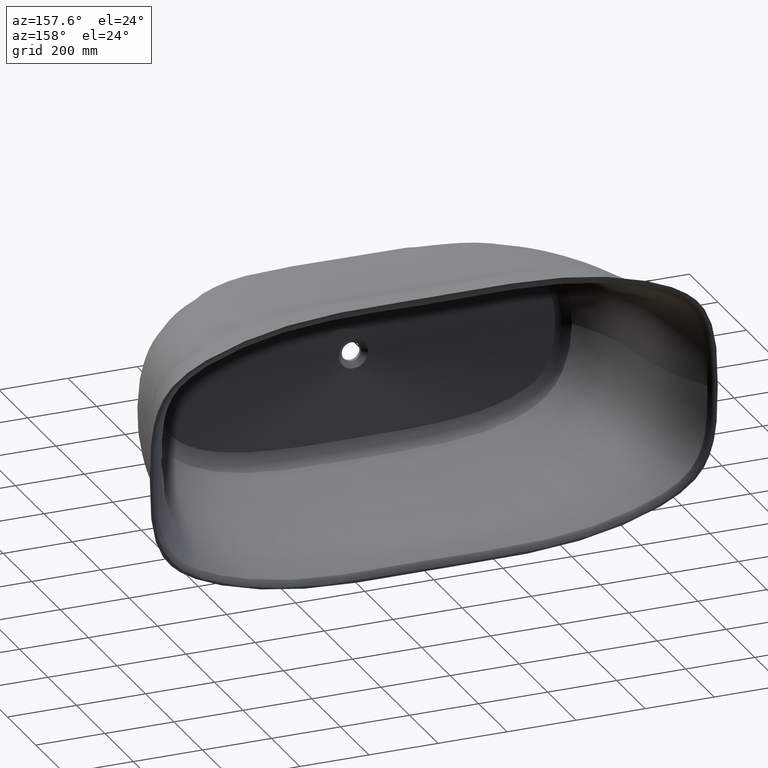
[diagram: clean part render]
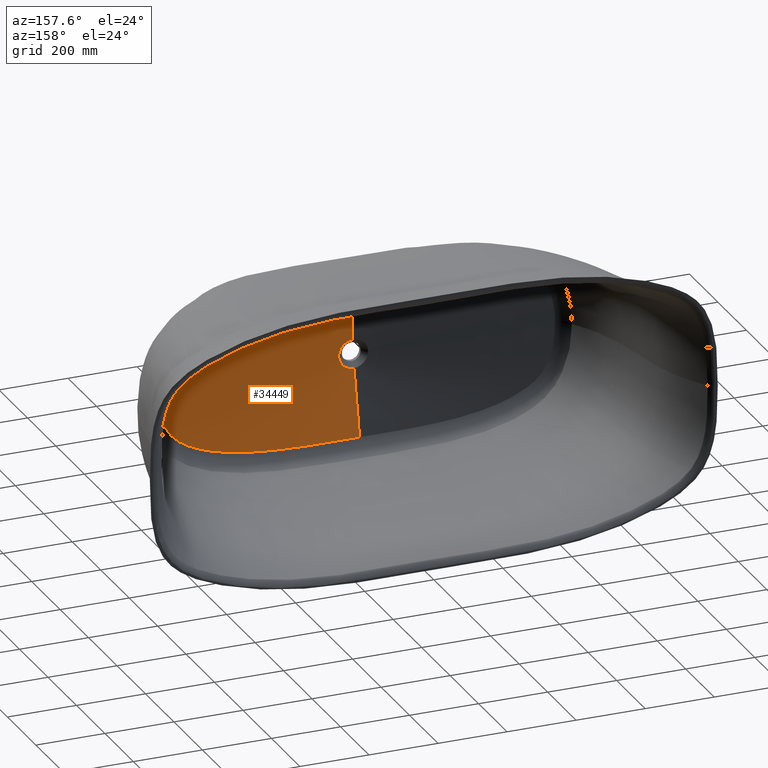
[diagram: same view with one face highlighted and labeled with its STEP entity id]
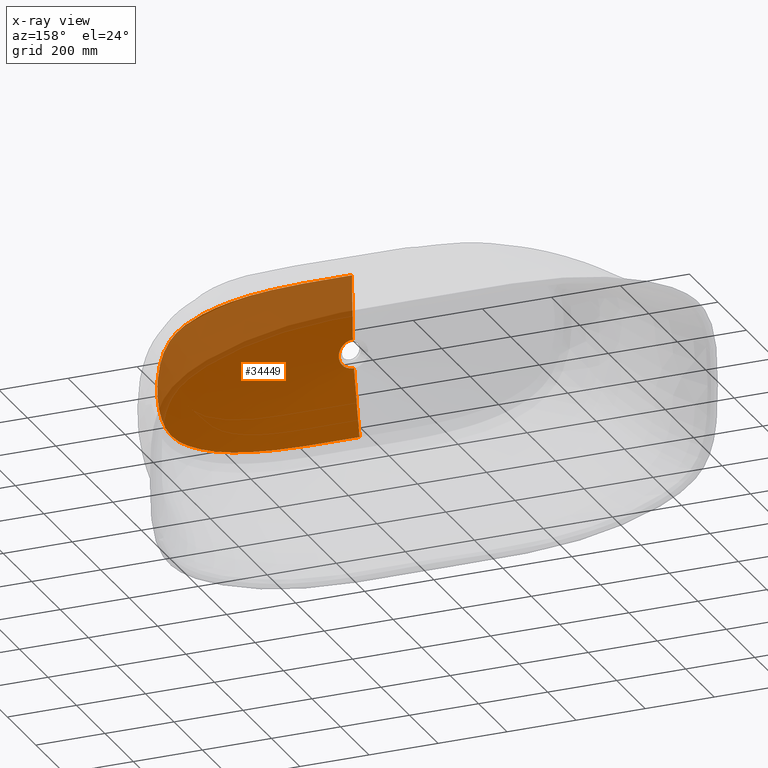
[diagram: x-ray of the same camera — body ghosted, the highlighted face saturated]
A machine part, auxiliary view. The second image highlights one B-rep face of the part: STEP entity #34449.
The next image is the same camera in x-ray: the body ghosted, the highlighted face saturated — about 34% of this face is hidden behind the body in this view.
In plain terms, the highlighted face is a freeform B-spline surface patch.
Its self-contained STEP definition (entity closure, byte-faithful):
#16 = CARTESIAN_POINT ( 'NONE',  ( 518.6670937110383193, -544.9999999999997726, -194.6114661703960280 ) ) ;
#99 = CARTESIAN_POINT ( 'NONE',  ( -581.8127968528436895, -544.9999999999997726, 110.6954176778296528 ) ) ;
#146 = CARTESIAN_POINT ( 'NONE',  ( 32.75534530422218182, -564.9999999999998863, -27.08627118273033219 ) ) ;
#227 = CARTESIAN_POINT ( 'NONE',  ( -42.49379011540796824, -565.0000000000000000, 0.7251708709900781535 ) ) ;
#271 = CARTESIAN_POINT ( 'NONE',  ( 36.42435553575705143, -565.0000000000000000, -21.90679665387271413 ) ) ;
#394 = CARTESIAN_POINT ( 'NONE',  ( 316.4946764935535839, -544.9999999999997726, -262.7786492955784752 ) ) ;
#517 = CARTESIAN_POINT ( 'NONE',  ( 493.6374416486809764, -544.9999999999997726, -210.5006593338358130 ) ) ;
#560 = CARTESIAN_POINT ( 'NONE',  ( 288.8604350435331867, -547.6306111859292969, 231.2809901388386606 ) ) ;
#575 = VERTEX_POINT ( 'NONE', #837 ) ;
#634 = CARTESIAN_POINT ( 'NONE',  ( 40.40717944345727375, -564.9999999999997726, 13.18898440143840567 ) ) ;
#649 = CARTESIAN_POINT ( 'NONE',  ( 458.0966103120601360, -546.6832332947685700, -193.2653694532610871 ) ) ;
#677 = CARTESIAN_POINT ( 'NONE',  ( 223.6206361591466134, -547.8132292298209904, 236.3652934831674486 ) ) ;
#750 = CARTESIAN_POINT ( 'NONE',  ( 595.4296947430171940, -544.9999999999998863, -59.88281942309281192 ) ) ;
#767 = CARTESIAN_POINT ( 'NONE',  ( 501.7823721278003859, -546.3179758529819310, -171.0473166481776843 ) ) ;
#837 = CARTESIAN_POINT ( 'NONE',  ( 563.3520282886204313, -545.8929433199208461, -89.32894424456020488 ) ) ;
#866 = CARTESIAN_POINT ( 'NONE',  ( 583.7480651156042768, -544.9999999999998863, -105.3774586253231718 ) ) ;
#981 = CARTESIAN_POINT ( 'NONE',  ( 574.9285805810939110, -544.9999999999997726, -127.3392924399462061 ) ) ;
#1027 = CARTESIAN_POINT ( 'NONE',  ( 125.6600471658656204, -547.9247090194789962, 239.0406804935037997 ) ) ;
#1099 = CARTESIAN_POINT ( 'NONE',  ( 42.00039139046921832, -565.0000000000001137, 6.614167099024782281 ) ) ;
#1148 = CARTESIAN_POINT ( 'NONE',  ( 525.8009961994059722, -546.1103617404875195, 152.2957632063941276 ) ) ;
#1219 = CARTESIAN_POINT ( 'NONE',  ( 523.9330018349187412, -544.9999999999997726, 190.4770974425754559 ) ) ;
#1268 = CARTESIAN_POINT ( 'NONE',  ( 572.6624512323061253, -545.8740198450879006, 49.23537554337214317 ) ) ;
#1336 = CARTESIAN_POINT ( 'NONE',  ( 386.1327819677264870, -544.9999999999998863, 249.9511554189010667 ) ) ;
#1357 = CARTESIAN_POINT ( 'NONE',  ( 250.6969764757950827, -547.7513441428822034, -234.6256716209719571 ) ) ;
#1385 = CARTESIAN_POINT ( 'NONE',  ( 548.5825666424234441, -545.9513264011071669, 123.2990919964413337 ) ) ;
#1451 = CARTESIAN_POINT ( 'NONE',  ( 17.00492091701891084, -564.9999999999996589, 38.95000431619889980 ) ) ;
#1499 = CARTESIAN_POINT ( 'NONE',  ( 432.4406399840922290, -546.8745859106057878, 202.7705564703235552 ) ) ;
#1519 = CARTESIAN_POINT ( 'NONE',  ( -596.7693686999552938, -544.9999999999997726, -52.19708917513930402 ) ) ;
#1565 = CARTESIAN_POINT ( 'NONE',  ( 494.4985965754647737, -545.0000000000000000, 210.3035787961516689 ) ) ;
#1611 = CARTESIAN_POINT ( 'NONE',  ( 478.1778421714197975, -546.5207475648404625, 184.3628792631578790 ) ) ;
#1630 = CARTESIAN_POINT ( 'NONE',  ( -518.4487727360897225, -545.0000000000000000, -194.6411732811732804 ) ) ;
#1642 = CARTESIAN_POINT ( 'NONE',  ( -25.64354764069754467, -565.0000000000000000, -33.89731481578413508 ) ) ;
#1679 = CARTESIAN_POINT ( 'NONE',  ( 517.6146099338557178, -544.9999999999998863, 195.1768497604071229 ) ) ;
#1748 = CARTESIAN_POINT ( 'NONE',  ( -33.31875362860875356, -564.9999999999997726, -26.38476082929286903 ) ) ;
#1759 = CARTESIAN_POINT ( 'NONE',  ( -426.2855663489997369, -544.9999999999998863, -238.9720329313795730 ) ) ;
#1797 = CARTESIAN_POINT ( 'NONE',  ( -388.1092349858448074, -544.9999999999997726, 249.5808685262892936 ) ) ;
#1869 = CARTESIAN_POINT ( 'NONE',  ( -35.71964888867798749, -565.0000000000000000, -23.05270373065573253 ) ) ;
#1918 = CARTESIAN_POINT ( 'NONE',  ( -20.93035277038509534, -565.0000000000001137, 36.98916688388516150 ) ) ;
#1989 = CARTESIAN_POINT ( 'NONE',  ( -579.8671267364037476, -544.9999999999996589, -115.9791823764279144 ) ) ;
#2035 = CARTESIAN_POINT ( 'NONE',  ( 13.85546946728807782, -564.9999999999997726, 40.21307416099155319 ) ) ;
#2117 = CARTESIAN_POINT ( 'NONE',  ( -26.76239402191269434, -565.0000000000000000, -33.01601758538572540 ) ) ;
#2153 = CARTESIAN_POINT ( 'NONE',  ( -83.22907493377593369, -544.9999999999998863, 273.0300455366225378 ) ) ;
#2279 = CARTESIAN_POINT ( 'NONE',  ( 26.68741399935548486, -544.9999999999997726, 272.8211208598857525 ) ) ;
#2403 = CARTESIAN_POINT ( 'NONE',  ( -31.34454019795763458, -564.9999999999997726, 28.70139028916203827 ) ) ;
#2531 = CARTESIAN_POINT ( 'NONE',  ( -596.7771212615313061, -544.9999999999996589, 51.36467079623920995 ) ) ;
#2577 = CARTESIAN_POINT ( 'NONE',  ( 2.976575138964300926, -565.0000000000000000, -42.39576043498365010 ) ) ;
#2596 = CARTESIAN_POINT ( 'NONE',  ( 1.630502404737210975, -565.0000000000000000, 42.46871156402247749 ) ) ;
#2658 = CARTESIAN_POINT ( 'NONE',  ( -598.1603385677557299, -544.9999999999997726, 41.60087126426215320 ) ) ;
#2784 = CARTESIAN_POINT ( 'NONE',  ( -435.9762520934222607, -544.9999999999997726, 235.9421809156194172 ) ) ;
#2827 = CARTESIAN_POINT ( 'NONE',  ( 33.58073295716292250, -564.9999999999997726, -26.06732349846350871 ) ) ;
#2909 = CARTESIAN_POINT ( 'NONE',  ( -585.1438781253864363, -544.9999999999998863, 101.3178880432774349 ) ) ;
#2953 = CARTESIAN_POINT ( 'NONE',  ( 532.3038346219937011, -544.9999999999998863, -183.4408457089651279 ) ) ;
#3035 = CARTESIAN_POINT ( 'NONE',  ( -600.3582675966848683, -545.0000000000000000, -3.416175265198661215 ) ) ;
#3080 = CARTESIAN_POINT ( 'NONE',  ( 14.23640805359431916, -565.0000000000001137, -40.04491050505089333 ) ) ;
#3098 = CARTESIAN_POINT ( 'NONE',  ( 0.0000000000000000000, -565.0000000000000000, 0.0000000000000000000 ) ) ;
#3205 = CARTESIAN_POINT ( 'NONE',  ( 8.225215290380560873, -565.0000000000001137, -41.69664647790428802 ) ) ;
#3326 = CARTESIAN_POINT ( 'NONE',  ( 32.19648570570293344, -565.0000000000000000, -27.74481846880192393 ) ) ;
#3342 = CARTESIAN_POINT ( 'NONE',  ( 525.0468367949215462, -546.1166749227496666, -152.9736147085646678 ) ) ;
#3442 = CARTESIAN_POINT ( 'NONE',  ( 39.65715433995398342, -564.9999999999998863, 15.30868588973187094 ) ) ;
#3457 = CARTESIAN_POINT ( 'NONE',  ( 442.8433017625559955, -546.7997785867927405, -199.1531296542286213 ) ) ;
#3559 = CARTESIAN_POINT ( 'NONE',  ( 597.9163061003730490, -544.9999999999998863, 43.62682694913147685 ) ) ;
#3577 = CARTESIAN_POINT ( 'NONE',  ( 392.6728162758758458, -547.1334289463635514, -214.0664147425409851 ) ) ;
#3678 = CARTESIAN_POINT ( 'NONE',  ( 41.75030458278234846, -565.0000000000001137, -7.952170983506441360 ) ) ;
#3696 = CARTESIAN_POINT ( 'NONE',  ( 120.0471979561213089, -547.9331196587571640, -239.1649749907973899 ) ) ;
#3724 = CARTESIAN_POINT ( 'NONE',  ( 76.65699250239254070, -547.9381654610112946, 239.2693781798798796 ) ) ;
#3796 = CARTESIAN_POINT ( 'NONE',  ( 40.92270870475730504, -564.9999999999997726, 11.47386738780316406 ) ) ;
#3816 = CARTESIAN_POINT ( 'NONE',  ( 41.59576475176292121, -547.9347092497757785, -239.0992478504985286 ) ) ;
#3919 = CARTESIAN_POINT ( 'NONE',  ( 42.43635878677890361, -565.0000000000000000, -2.473175657512223680 ) ) ;
#3939 = CARTESIAN_POINT ( 'NONE',  ( 54.67140340021869349, -547.9359655892350247, -239.1422851767246414 ) ) ;
#3967 = CARTESIAN_POINT ( 'NONE',  ( 506.4857421819662022, -546.2771871362431284, 167.8234668015593058 ) ) ;
#4039 = CARTESIAN_POINT ( 'NONE',  ( 466.4163896781677749, -544.9999999999997726, 224.1166990830114685 ) ) ;
#4075 = EDGE_CURVE ( 'NONE', #25524, #575, #33331, .T. ) ;
#4088 = CARTESIAN_POINT ( 'NONE',  ( 521.1696228500078405, -546.1497661060570863, 156.4403867578472784 ) ) ;
#4156 = CARTESIAN_POINT ( 'NONE',  ( 20.41157324710891885, -564.9999999999996589, 37.31232818347569946 ) ) ;
#4176 = CARTESIAN_POINT ( 'NONE',  ( -4.168992250250743048, -547.9318319793966339, -239.0238976745436332 ) ) ;
#4202 = CARTESIAN_POINT ( 'NONE',  ( 455.5225457407764225, -546.7033138722534886, 194.3180481704469287 ) ) ;
#4268 = CARTESIAN_POINT ( 'NONE',  ( 275.5904908055361489, -544.9999999999997726, 267.0670158753854935 ) ) ;
#4315 = CARTESIAN_POINT ( 'NONE',  ( 570.8471171810756459, -545.8767764971568113, 59.37727325591709615 ) ) ;
#4334 = CARTESIAN_POINT ( 'NONE',  ( -598.7905360226266112, -545.0000000000000000, -34.89251959035473760 ) ) ;
#4379 = CARTESIAN_POINT ( 'NONE',  ( 553.2168001089135032, -544.9999999999998863, 161.6169200040540375 ) ) ;
#4447 = CARTESIAN_POINT ( 'NONE',  ( -599.6228629926694111, -545.0000000000001137, -25.26714172680226156 ) ) ;
#4459 = CARTESIAN_POINT ( 'NONE',  ( -41.32216188935881718, -544.9999999999998863, -272.8494577021877490 ) ) ;
#4498 = CARTESIAN_POINT ( 'NONE',  ( 25.64623760065863678, -565.0000000000001137, 33.91677560561061000 ) ) ;
#4565 = CARTESIAN_POINT ( 'NONE',  ( -513.6699232353873867, -544.9999999999998863, -197.9934749608186166 ) ) ;
#4576 = CARTESIAN_POINT ( 'NONE',  ( -196.3559407775439354, -544.9999999999996589, -271.6615825537427895 ) ) ;
#4613 = CARTESIAN_POINT ( 'NONE',  ( -132.3131026006142861, -544.9999999999998863, 273.0144337545012831 ) ) ;
#4684 = CARTESIAN_POINT ( 'NONE',  ( -460.8068493065283633, -544.9999999999997726, -226.5034262474553373 ) ) ;
#4696 = CARTESIAN_POINT ( 'NONE',  ( -420.7183219435326578, -544.9999999999998863, -240.7279881296182111 ) ) ;
#4734 = CARTESIAN_POINT ( 'NONE',  ( -401.6425016394672980, -544.9999999999998863, 246.1288634646480205 ) ) ;
#4803 = CARTESIAN_POINT ( 'NONE',  ( -31.59635320330741948, -564.9999999999998863, -28.45012977250265607 ) ) ;
#4814 = CARTESIAN_POINT ( 'NONE',  ( -18.55810814171857359, -564.9999999999997726, -38.24202508076029261 ) ) ;
#4851 = CARTESIAN_POINT ( 'NONE',  ( 6.015596135129710476, -565.0000000000000000, 42.07223675486527981 ) ) ;
#4936 = CARTESIAN_POINT ( 'NONE',  ( -211.8480423112455071, -544.9999999999996589, -271.1185387294096927 ) ) ;
#4971 = CARTESIAN_POINT ( 'NONE',  ( -320.1179830465682130, -545.0000000000000000, 262.3109403408870435 ) ) ;
#5097 = CARTESIAN_POINT ( 'NONE',  ( 2.237134334628409604, -564.9999999999997726, 42.44542112774491471 ) ) ;
#5143 = CARTESIAN_POINT ( 'NONE',  ( 38.16923597246997701, -545.0000000000000000, -272.8641849728236366 ) ) ;
#5222 = CARTESIAN_POINT ( 'NONE',  ( -572.1988907484322908, -544.9999999999998863, 132.7071563772329341 ) ) ;
#5353 = CARTESIAN_POINT ( 'NONE',  ( -567.1992892509164221, -544.9999999999998863, 141.3006070264957827 ) ) ;
#5442 = EDGE_CURVE ( 'NONE', #17120, #31569, #36145, .T. ) ;
#5479 = CARTESIAN_POINT ( 'NONE',  ( -465.5416784909863281, -545.0000000000000000, 224.4884379942446060 ) ) ;
#5602 = CARTESIAN_POINT ( 'NONE',  ( -558.6596586426804834, -544.9999999999997726, 154.6714751199375826 ) ) ;
#5647 = CARTESIAN_POINT ( 'NONE',  ( 285.7293518315335064, -544.9999999999998863, -266.0916568798211301 ) ) ;
#5726 = CARTESIAN_POINT ( 'NONE',  ( -39.92430343477378329, -564.9999999999998863, 14.57274761548335107 ) ) ;
#5773 = CARTESIAN_POINT ( 'NONE',  ( 536.7122042267784536, -544.9999999999998863, -179.5193387296127128 ) ) ;
#5852 = CARTESIAN_POINT ( 'NONE',  ( -42.00075553635150527, -565.0000000000000000, 6.613657292032462998 ) ) ;
#5897 = CARTESIAN_POINT ( 'NONE',  ( 30.91720445265153216, -565.0000000000001137, -29.16803190309685334 ) ) ;
#5915 = CARTESIAN_POINT ( 'NONE',  ( 555.1704641972843319, -545.9204288814056554, -110.5994985090875389 ) ) ;
#6018 = CARTESIAN_POINT ( 'NONE',  ( 22.68341901011922701, -565.0000000000001137, -35.95242557471507183 ) ) ;
#6033 = CARTESIAN_POINT ( 'NONE',  ( 561.3630256318293732, -545.8983311760965762, -95.52296366252650728 ) ) ;
#6133 = CARTESIAN_POINT ( 'NONE',  ( 406.2534690100370085, -544.9999999999998863, -244.8715526777782827 ) ) ;
#6148 = CARTESIAN_POINT ( 'NONE',  ( 517.6575982724131109, -546.1795493171140379, -159.5710791649334226 ) ) ;
#6251 = CARTESIAN_POINT ( 'NONE',  ( 42.47964495309389577, -565.0000000000000000, -1.345727021679400170 ) ) ;
#6267 = CARTESIAN_POINT ( 'NONE',  ( 354.3119729316532585, -547.3501868750280437, -222.2226404625690748 ) ) ;
#6366 = CARTESIAN_POINT ( 'NONE',  ( 583.0643468105789680, -544.9999999999998863, -107.2588589823184719 ) ) ;
#6374 = FACE_OUTER_BOUND ( 'NONE', #11896, .T. ) ;
#6385 = CARTESIAN_POINT ( 'NONE',  ( 496.2453965813624563, -546.3662211297621525, -174.4852834228867664 ) ) ;
#6487 = CARTESIAN_POINT ( 'NONE',  ( 37.48132829791509124, -565.0000000000001137, -20.03640895217263562 ) ) ;
#6506 = CARTESIAN_POINT ( 'NONE',  ( 231.1179572311281731, -547.7986175654290264, -235.8886189801518469 ) ) ;
#6607 = CARTESIAN_POINT ( 'NONE',  ( 40.52436527174739211, -564.9999999999998863, -12.86193370607260356 ) ) ;
#6623 = CIRCLE ( 'NONE', #27494, 42.50000000000001421 ) ;
#6656 = CARTESIAN_POINT ( 'NONE',  ( 547.5281267266209397, -545.9569488838138795, 125.0868066907354148 ) ) ;
#6726 = CARTESIAN_POINT ( 'NONE',  ( 41.54064148219030272, -565.0000000000000000, -9.015621590550749076 ) ) ;
#6773 = CARTESIAN_POINT ( 'NONE',  ( 440.1771975190502530, -546.8194287400781377, 200.1388969877624504 ) ) ;
#6841 = CARTESIAN_POINT ( 'NONE',  ( 37.78221267253969984, -564.9999999999998863, 19.49063029227824728 ) ) ;
#6890 = CARTESIAN_POINT ( 'NONE',  ( 337.4596864148241480, -547.4306180839802209, 225.0025944616963329 ) ) ;
#6957 = CARTESIAN_POINT ( 'NONE',  ( 38.41465604000964618, -565.0000000000000000, 18.21507607946258389 ) ) ;
#6977 = CARTESIAN_POINT ( 'NONE',  ( 15.44457840666155235, -547.9326873268915961, -239.0370811444772414 ) ) ;
#7005 = CARTESIAN_POINT ( 'NONE',  ( 466.9264532401629140, -546.6127548505718323, 189.5017800162781896 ) ) ;
#7070 = CARTESIAN_POINT ( 'NONE',  ( 31.59635320330655262, -565.0000000000000000, 28.45012977250362951 ) ) ;
#7117 = CARTESIAN_POINT ( 'NONE',  ( 321.3275775735897355, -547.5036923494409393, 227.3904752132638123 ) ) ;
#7137 = CARTESIAN_POINT ( 'NONE',  ( -38.90525411499898212, -565.0000000000000000, -17.10822289307071742 ) ) ;
#7183 = CARTESIAN_POINT ( 'NONE',  ( 38.90525411499869080, -565.0000000000000000, 17.10822289307139599 ) ) ;
#7231 = CARTESIAN_POINT ( 'NONE',  ( -1.630502404737337541, -565.0000000000000000, -42.46871156402247749 ) ) ;
#7250 = CARTESIAN_POINT ( 'NONE',  ( -548.5065719813057967, -545.0000000000000000, -167.2426341226138788 ) ) ;
#7262 = CARTESIAN_POINT ( 'NONE',  ( -433.6637528985602899, -544.9999999999998863, -236.5939973026652297 ) ) ;
#7301 = CARTESIAN_POINT ( 'NONE',  ( 343.8480977008475747, -544.9999999999998863, 258.6174485004259509 ) ) ;
#7371 = CARTESIAN_POINT ( 'NONE',  ( -572.4506171553466629, -544.9999999999998863, -131.7576963562279673 ) ) ;
#7383 = CARTESIAN_POINT ( 'NONE',  ( -72.34110909256867217, -545.0000000000000000, -273.0690133402819697 ) ) ;
#7419 = CARTESIAN_POINT ( 'NONE',  ( -17.63153233179006918, -565.0000000000001137, 38.72325044630752444 ) ) ;
#7493 = CARTESIAN_POINT ( 'NONE',  ( -34.85851594059732861, -564.9999999999997726, -24.34018150319447926 ) ) ;
#7505 = CARTESIAN_POINT ( 'NONE',  ( -6.818610585647471467, -564.9999999999997726, -41.95544309610714606 ) ) ;
#7542 = CARTESIAN_POINT ( 'NONE',  ( -407.3938243367505834, -544.9999999999998863, 244.5594863279241906 ) ) ;
#7609 = CARTESIAN_POINT ( 'NONE',  ( -41.62780420487724342, -564.9999999999997726, -8.712481314938621324 ) ) ;
#7657 = CARTESIAN_POINT ( 'NONE',  ( -2.976575138964329348, -564.9999999999998863, 42.39576043498363589 ) ) ;
#7742 = CARTESIAN_POINT ( 'NONE',  ( -1.630502404737340649, -565.0000000000000000, -42.46871156402261249 ) ) ;
#7778 = CARTESIAN_POINT ( 'NONE',  ( 6.818610585647300049, -565.0000000000000000, 41.95544309610716738 ) ) ;
#7822 = CARTESIAN_POINT ( 'NONE',  ( -1.630502404737340649, -565.0000000000000000, -42.46871156402261249 ) ) ;
#7901 = CARTESIAN_POINT ( 'NONE',  ( -3.892791886777073440, -565.0000000000000000, 42.33039757302750417 ) ) ;
#8032 = CARTESIAN_POINT ( 'NONE',  ( -553.1221970234328182, -545.0000000000000000, 161.7484769125621540 ) ) ;
#8100 = CARTESIAN_POINT ( 'NONE',  ( -1.630502404737337541, -565.0000000000000000, -42.46871156402247749 ) ) ;
#8161 = CARTESIAN_POINT ( 'NONE',  ( -34.77553549034313107, -565.0000000000000000, 24.43286042522015578 ) ) ;
#8206 = CARTESIAN_POINT ( 'NONE',  ( 144.7430431623677975, -544.9999999999997726, -272.9692152746024476 ) ) ;
#8289 = CARTESIAN_POINT ( 'NONE',  ( -36.23880452082588732, -565.0000000000000000, 22.20570611291755014 ) ) ;
#8415 = CARTESIAN_POINT ( 'NONE',  ( -24.45091935762970081, -565.0000000000000000, 34.76256166552309423 ) ) ;
#8461 = CARTESIAN_POINT ( 'NONE',  ( 23.71352635074208237, -565.0000000000001137, -35.27239043970136834 ) ) ;
#8540 = CARTESIAN_POINT ( 'NONE',  ( -593.1792955827814922, -545.0000000000000000, 72.71329538413729665 ) ) ;
#8585 = CARTESIAN_POINT ( 'NONE',  ( 35.80785505918303357, -564.9999999999998863, -22.90624558508807951 ) ) ;
#8666 = CARTESIAN_POINT ( 'NONE',  ( -600.3721956076165043, -544.9999999999994316, 1.852394885803722691 ) ) ;
#8710 = CARTESIAN_POINT ( 'NONE',  ( 20.93035277038531561, -565.0000000000001137, -36.98916688388502649 ) ) ;
#8830 = CARTESIAN_POINT ( 'NONE',  ( 21.65730394401752790, -565.0000000000001137, -36.57597011874719328 ) ) ;
#8844 = CARTESIAN_POINT ( 'NONE',  ( 540.3711122351520544, -545.9987261097214741, -136.0704858787835576 ) ) ;
#8946 = CARTESIAN_POINT ( 'NONE',  ( 24.45091935762997437, -565.0000000000001137, -34.76256166552289528 ) ) ;
#8961 = CARTESIAN_POINT ( 'NONE',  ( 544.1130723266327323, -545.9755567115007580, -130.7401167889583178 ) ) ;
#9062 = CARTESIAN_POINT ( 'NONE',  ( 585.2607542296608472, -545.0000000000000000, 101.0213722928051823 ) ) ;
#9105 = CARTESIAN_POINT ( 'NONE',  ( 43.98114364514882624, -547.9322851976263564, 239.0737259048653698 ) ) ;
#9178 = CARTESIAN_POINT ( 'NONE',  ( 580.2943811534825045, -544.9999999999997726, -114.6605468267152901 ) ) ;
#9197 = DIRECTION ( 'NONE',  ( 0.0000000000000000000, 0.0000000000000000000, 1.000000000000000000 ) ) ;
#9299 = CARTESIAN_POINT ( 'NONE',  ( 591.2864885779855513, -544.9999999999998863, -80.91859397481533733 ) ) ;
#9374 = B_SPLINE_SURFACE_WITH_KNOTS ( 'NONE', 3, 1, ( 
 ( #24585, #7822 ),
 ( #10638, #30198 ),
 ( #21883, #13461 ),
 ( #5143, #10763 ),
 ( #10890, #30456 ),
 ( #13714, #2577 ),
 ( #22140, #24965 ),
 ( #8206, #28499 ),
 ( #25464, #3205 ),
 ( #31205, #11759 ),
 ( #30836, #25702 ),
 ( #22882, #25214 ),
 ( #14093, #3080 ),
 ( #5647, #30959 ),
 ( #394, #22390 ),
 ( #19824, #22761 ),
 ( #11401, #8710 ),
 ( #28381, #8830 ),
 ( #28264, #6018 ),
 ( #14459, #8461 ),
 ( #28015, #25584 ),
 ( #6133, #8946 ),
 ( #34022, #11525 ),
 ( #17263, #11643 ),
 ( #11272, #33901 ),
 ( #31083, #33657 ),
 ( #14341, #31324 ),
 ( #33527, #14216 ),
 ( #17143, #5897 ),
 ( #517, #20071 ),
 ( #33779, #16896 ),
 ( #19947, #3326 ),
 ( #16769, #146 ),
 ( #16, #2827 ),
 ( #19570, #19697 ),
 ( #2953, #22514 ),
 ( #5773, #25338 ),
 ( #17021, #8585 ),
 ( #28139, #271 ),
 ( #22639, #25817 ),
 ( #23004, #31439 ),
 ( #14811, #6487 ),
 ( #20425, #34373 ),
 ( #28971, #17378 ),
 ( #981, #23480 ),
 ( #9178, #15042 ),
 ( #26051, #11997 ),
 ( #6366, #17494 ),
 ( #866, #12115 ),
 ( #12235, #6607 ),
 ( #9299, #26170 ),
 ( #11878, #6726 ),
 ( #750, #3678 ),
 ( #17613, #14574 ),
 ( #28615, #29091 ),
 ( #31790, #3919 ),
 ( #26289, #6251 ),
 ( #28732, #20306 ),
 ( #34612, #31672 ),
 ( #9536, #31554 ),
 ( #12355, #17846 ),
 ( #23362, #23239 ),
 ( #28851, #14924 ),
 ( #3559, #1099 ),
 ( #34491, #17728 ),
 ( #14694, #20541 ),
 ( #9417, #3796 ),
 ( #20658, #34139 ),
 ( #25931, #634 ),
 ( #9062, #34255 ),
 ( #20188, #3442 ),
 ( #23122, #29669 ),
 ( #15161, #7183 ),
 ( #34733, #6957 ),
 ( #12812, #6841 ),
 ( #34963, #31909 ),
 ( #17969, #29437 ),
 ( #26405, #35075 ),
 ( #4379, #15503 ),
 ( #10113, #12698 ),
 ( #32366, #26629 ),
 ( #23714, #18309 ),
 ( #1219, #15616 ),
 ( #21121, #26860 ),
 ( #1679, #23940 ),
 ( #34851, #21007 ),
 ( #32252, #12474 ),
 ( #1565, #7070 ),
 ( #9654, #20777 ),
 ( #9881, #26741 ),
 ( #4039, #23597 ),
 ( #29209, #18086 ),
 ( #35188, #29550 ),
 ( #9995, #18423 ),
 ( #18196, #21239 ),
 ( #32027, #4498 ),
 ( #32141, #29322 ),
 ( #1336, #15276 ),
 ( #24058, #20895 ),
 ( #7301, #4156 ),
 ( #23829, #26517 ),
 ( #9769, #12586 ),
 ( #15389, #1451 ),
 ( #4268, #18778 ),
 ( #10232, #2035 ),
 ( #21357, #24297 ),
 ( #21837, #16092 ),
 ( #10716, #35544 ),
 ( #19022, #27099 ),
 ( #15735, #7778 ),
 ( #32607, #4851 ),
 ( #32970, #21477 ),
 ( #27340, #13292 ),
 ( #2279, #5097 ),
 ( #29912, #24665 ),
 ( #10351, #24416 ),
 ( #32843, #10471 ),
 ( #30154, #26980 ),
 ( #2153, #7657 ),
 ( #13052, #7901 ),
 ( #4613, #27219 ),
 ( #35427, #18899 ),
 ( #15854, #24178 ),
 ( #13415, #30032 ),
 ( #35666, #27462 ),
 ( #21595, #21714 ),
 ( #18659, #35305 ),
 ( #10591, #18538 ),
 ( #4971, #7419 ),
 ( #24539, #16216 ),
 ( #35789, #1918 ),
 ( #32485, #12930 ),
 ( #1797, #29792 ),
 ( #4734, #13173 ),
 ( #7542, #32725 ),
 ( #15972, #8415 ),
 ( #16466, #16727 ),
 ( #2784, #24919 ),
 ( #36038, #33093 ),
 ( #27969, #35910 ),
 ( #5479, #21964 ),
 ( #13796, #30538 ),
 ( #16851, #36292 ),
 ( #11226, #19652 ),
 ( #22471, #2403 ),
 ( #27844, #33356 ),
 ( #22221, #36170 ),
 ( #22094, #30789 ),
 ( #19275, #19527 ),
 ( #22347, #8161 ),
 ( #10972, #25044 ),
 ( #33223, #14049 ),
 ( #16596, #11102 ),
 ( #8032, #8289 ),
 ( #5602, #30666 ),
 ( #25168, #30279 ),
 ( #5353, #16340 ),
 ( #5222, #10844 ),
 ( #19405, #13924 ),
 ( #99, #28094 ),
 ( #13539, #33610 ),
 ( #2909, #5726 ),
 ( #33483, #19146 ),
 ( #25292, #13667 ),
 ( #8540, #30409 ),
 ( #24791, #27589 ),
 ( #2531, #27719 ),
 ( #2658, #5852 ),
 ( #11481, #22593 ),
 ( #28219, #31039 ),
 ( #30914, #25419 ),
 ( #8666, #14295 ),
 ( #11354, #227 ),
 ( #14172, #16976 ),
 ( #33735, #19779 ),
 ( #3035, #15925 ),
 ( #29502, #10182 ),
 ( #26810, #24248 ),
 ( #4447, #29618 ),
 ( #4334, #12881 ),
 ( #27171, #12763 ),
 ( #1519, #18608 ),
 ( #16043, #7609 ),
 ( #29982, #21073 ),
 ( #35618, #23895 ),
 ( #35139, #18732 ),
 ( #32676, #13123 ),
 ( #29739, #10302 ),
 ( #1989, #32318 ),
 ( #9949, #29863 ),
 ( #7371, #7137 ),
 ( #10422, #15684 ),
 ( #12999, #32435 ),
 ( #35375, #26694 ),
 ( #15568, #27050 ),
 ( #7250, #13244 ),
 ( #15803, #24008 ),
 ( #18374, #1869 ),
 ( #10062, #7493 ),
 ( #1630, #21189 ),
 ( #4565, #35255 ),
 ( #32795, #18490 ),
 ( #35497, #1748 ),
 ( #21308, #21547 ),
 ( #24129, #4803 ),
 ( #26929, #32554 ),
 ( #24368, #21428 ),
 ( #4684, #20806 ),
 ( #34880, #26942 ),
 ( #7262, #15696 ),
 ( #1759, #2117 ),
 ( #4696, #35388 ),
 ( #13255, #1642 ),
 ( #26822, #10433 ),
 ( #18621, #32567 ),
 ( #21319, #35267 ),
 ( #32806, #32447 ),
 ( #32687, #30117 ),
 ( #27062, #4814 ),
 ( #29875, #27182 ),
 ( #35151, #24501 ),
 ( #10194, #18743 ),
 ( #18386, #16054 ),
 ( #24379, #13377 ),
 ( #4936, #29995 ),
 ( #4576, #24260 ),
 ( #35508, #18501 ),
 ( #18862, #35629 ),
 ( #10074, #7505 ),
 ( #24141, #21558 ),
 ( #7383, #29752 ),
 ( #4459, #13012 ),
 ( #21678, #7742 ) ),
 .UNSPECIFIED., .T., .F., .F.,
 ( 4, 1, 1, 2, 1, 2, 1, 1, 2, 1, 1, 2, 1, 1, 1, 2, 1, 1, 2, 1, 1, 2, 1, 1, 1, 1, 2, 1, 1, 1, 1, 1, 2, 1, 1, 1, 2, 1, 1, 1, 2, 1, 1, 2, 1, 1, 1, 1, 2, 1, 1, 2, 1, 1, 1, 1, 2, 1, 1, 1, 1, 1, 2, 1, 1, 1, 2, 1, 1, 1, 2, 1, 1, 1, 2, 1, 2, 1, 1, 1, 2, 1, 1, 2, 1, 1, 2, 1, 1, 2, 1, 1, 2, 1, 1, 2, 1, 1, 2, 1, 1, 2, 1, 1, 1, 2, 1, 1, 2, 1, 1, 1, 2, 1, 1, 1, 2, 1, 1, 1, 1, 1, 2, 1, 1, 1, 1, 2, 1, 1, 2, 1, 1, 2, 1, 1, 1, 1, 1, 1, 1, 1, 2, 1, 1, 2, 1, 1, 1, 1, 2, 1, 1, 1, 1, 2, 1, 1, 1, 2, 1, 1, 1, 2, 1, 1, 2, 1, 1, 1, 2, 1, 1, 1, 1, 2, 1, 1, 2, 1, 1, 2, 1, 4 ),
 ( 2, 2 ),
 ( 0.0000000000000000000, 0.001973311785057246803, 0.01759831178505724680, 0.03124999999999975020, 0.03322331178505735783, 0.06249999999999951428, 0.06447331178505757987, 0.08009831178505769089, 0.09374999999999929223, 0.09572331178505780191, 0.1113483117850578019, 0.1249999999999990563, 0.1269733117850579129, 0.1347858117850580240, 0.1386920617850580240, 0.1406249999999989730, 0.1425983117850581350, 0.1504108117850583570, 0.1562499999999989175, 0.1582233117850584680, 0.1660358117850585791, 0.1718749999999988898, 0.1738483117850588011, 0.1758014367850588011, 0.1777545617850588011, 0.1816608117850589121, 0.1874999999999988898, 0.1894733117850590232, 0.1933795617850590232, 0.1972858117850591342, 0.1992389367850591342, 0.2011920617850592452, 0.2031249999999988620, 0.2050983117850592452, 0.2129108117850593562, 0.2168170617850594672, 0.2187499999999988620, 0.2187701867850594672, 0.2207233117850594672, 0.2285358117850596893, 0.2343749999999988343, 0.2363483117850598003, 0.2441608117850600224, 0.2499999999999988343, 0.2519733117850601056, 0.2539264367850601056, 0.2558795617850601056, 0.2597858117850602166, 0.2656249999999988343, 0.2675983117850603277, 0.2754108117850604387, 0.2812499999999987788, 0.2832233117850605497, 0.2871295617850605497, 0.2890826867850606607, 0.2910358117850606607, 0.2968749999999987788, 0.2988483117850608828, 0.3066608117850611048, 0.3086139367850612159, 0.3095904992850612159, 0.3105670617850612159, 0.3124999999999987788, 0.3144733117850614379, 0.3222858117850615489, 0.3261920617850615489, 0.3281249999999987788, 0.3281451867850614379, 0.3300983117850614379, 0.3379108117850613269, 0.3437499999999987232, 0.3457233117850612159, 0.3535358117850612159, 0.3574420617850611048, 0.3593749999999987232, 0.3613483117850609938, 0.3749999999999987232, 0.3769733117850607718, 0.3925983117850604387, 0.4004108117850603277, 0.4062499999999987232, 0.4082233117850601056, 0.4238483117850598836, 0.4374999999999988343, 0.4394733117850594395, 0.4550983117850591064, 0.4687499999999988898, 0.4707233117850587734, 0.4863483117850583293, 0.4999999999999990008, 0.5019733117850581072, 0.5175983117850576631, 0.5312499999999991118, 0.5332233117850574411, 0.5488483117850571080, 0.5624999999999991118, 0.5644733117850567750, 0.5800983117850563309, 0.5937499999999992228, 0.5957233117850559978, 0.6113483117850556647, 0.6249999999999992228, 0.6269733117850553317, 0.6347858117850552206, 0.6386920617850549986, 0.6406249999999992228, 0.6425983117850549986, 0.6504108117850546655, 0.6562499999999992228, 0.6582233117850544435, 0.6660358117850542214, 0.6699420617850541104, 0.6718749999999993339, 0.6718951867850541104, 0.6738483117850539994, 0.6816608117850539994, 0.6874999999999992228, 0.6894733117850538884, 0.6933795617850538884, 0.6943561242850538884, 0.6953326867850538884, 0.6972858117850538884, 0.7031249999999992228, 0.7050983117850541104, 0.7129108117850542214, 0.7148639367850542214, 0.7168170617850543325, 0.7187499999999992228, 0.7207233117850543325, 0.7285358117850545545, 0.7343749999999992228, 0.7363483117850546655, 0.7441608117850548876, 0.7499999999999992228, 0.7519733117850549986, 0.7520953820975548876, 0.7522174524100548876, 0.7524615930350548876, 0.7529498742850548876, 0.7539264367850548876, 0.7558795617850549986, 0.7597858117850549986, 0.7656249999999992228, 0.7675983117850551096, 0.7754108117850551096, 0.7812499999999992228, 0.7832233117850552206, 0.7851764367850552206, 0.7871295617850552206, 0.7910358117850553317, 0.7968749999999992228, 0.7988483117850554427, 0.8066608117850554427, 0.8086139367850554427, 0.8105670617850555537, 0.8124999999999992228, 0.8144733117850554427, 0.8222858117850555537, 0.8261920617850555537, 0.8281249999999993339, 0.8281451867850555537, 0.8300983117850555537, 0.8379108117850557758, 0.8437499999999994449, 0.8457233117850558868, 0.8535358117850559978, 0.8593749999999995559, 0.8613483117850562198, 0.8652545617850563309, 0.8691608117850563309, 0.8749999999999996669, 0.8769733117850564419, 0.8925983117850566639, 0.9004108117850566639, 0.9043170617850566639, 0.9062499999999997780, 0.9082233117850565529, 0.9238483117850566639, 0.9374999999999997780, 0.9394733117850567750, 0.9550983117850568860, 0.9687499999999998890, 0.9707233117850569970, 1.000000000000000000 ),
 ( 0.0000000000000000000, 1.000000000000000000 ),
 .UNSPECIFIED. ) ;
#9417 = CARTESIAN_POINT ( 'NONE',  ( 591.2348298523747872, -544.9999999999998863, 80.13542979965956192 ) ) ;
#9464 = CARTESIAN_POINT ( 'NONE',  ( 567.8341978148941962, -545.8821805881141245, 73.52948625889861489 ) ) ;
#9536 = CARTESIAN_POINT ( 'NONE',  ( 600.3800991504264175, -544.9999999999997726, 4.530365495627787453 ) ) ;
#9584 = CARTESIAN_POINT ( 'NONE',  ( 550.6162214108718445, -545.9409969974706200, 119.6741029390696553 ) ) ;
#9654 = CARTESIAN_POINT ( 'NONE',  ( 482.3414919990420913, -544.9999999999998863, 216.5670573095885345 ) ) ;
#9701 = CARTESIAN_POINT ( 'NONE',  ( 519.5883646430455656, -546.1633663413845170, 157.7956617127389904 ) ) ;
#9769 = CARTESIAN_POINT ( 'NONE',  ( 301.0127357565066291, -544.9999999999998863, 264.3481424986258617 ) ) ;
#9816 = CARTESIAN_POINT ( 'NONE',  ( 556.1062288019090829, -545.9166637289683877, 108.5742729733279077 ) ) ;
#9881 = CARTESIAN_POINT ( 'NONE',  ( 475.2895865198352112, -544.9999999999998863, 219.9554436158971953 ) ) ;
#9929 = CARTESIAN_POINT ( 'NONE',  ( 575.3175201083455477, -545.8714549209930738, 24.73987323851333286 ) ) ;
#9949 = CARTESIAN_POINT ( 'NONE',  ( -575.9209080920493307, -544.9999999999998863, -124.8241800866458107 ) ) ;
#9995 = CARTESIAN_POINT ( 'NONE',  ( 435.2615416060672260, -544.9999999999998863, 236.0192072181891945 ) ) ;
#10043 = CARTESIAN_POINT ( 'NONE',  ( -10.70691523155910829, -547.9319882033653357, -239.0317121700435905 ) ) ;
#10062 = CARTESIAN_POINT ( 'NONE',  ( -529.2547292414790263, -545.0000000000000000, -186.4001087121668547 ) ) ;
#10074 = CARTESIAN_POINT ( 'NONE',  ( -118.8594377959498303, -545.0000000000000000, -273.0201342432175124 ) ) ;
#10113 = CARTESIAN_POINT ( 'NONE',  ( 550.7199383930742442, -544.9999999999998863, 164.6630767075787389 ) ) ;
#10182 = CARTESIAN_POINT ( 'NONE',  ( -42.50102672512864643, -565.0000000000000000, -0.2027437224766845125 ) ) ;
#10194 = CARTESIAN_POINT ( 'NONE',  ( -289.2342067539566415, -544.9999999999998863, -265.6165828108958635 ) ) ;
#10232 = CARTESIAN_POINT ( 'NONE',  ( 244.3074455540459837, -545.0000000000000000, 269.5757729174558790 ) ) ;
#10302 = CARTESIAN_POINT ( 'NONE',  ( -40.24791994920556704, -564.9999999999997726, -13.66731160394056133 ) ) ;
#10351 = CARTESIAN_POINT ( 'NONE',  ( -6.693985456834794512, -544.9999999999997726, 272.7717930301652132 ) ) ;
#10391 = ORIENTED_EDGE ( 'NONE', *, *, #34499, .F. ) ;
#10422 = CARTESIAN_POINT ( 'NONE',  ( -567.9739274834439584, -544.9999999999998863, -140.3759899738652450 ) ) ;
#10433 = CARTESIAN_POINT ( 'NONE',  ( -24.67032072848083146, -564.9999999999997726, -34.61480137456664607 ) ) ;
#10471 = CARTESIAN_POINT ( 'NONE',  ( -0.7000296251440872863, -564.9999999999998863, 42.51246700758897390 ) ) ;
#10591 = CARTESIAN_POINT ( 'NONE',  ( -288.9124132727681626, -545.0000000000000000, 265.7752064726710728 ) ) ;
#10638 = CARTESIAN_POINT ( 'NONE',  ( -10.30764335181830127, -544.9999999999998863, -272.7943440246913838 ) ) ;
#10716 = CARTESIAN_POINT ( 'NONE',  ( 181.6300366487286624, -544.9999999999998863, 272.1781580202336954 ) ) ;
#10763 = CARTESIAN_POINT ( 'NONE',  ( 0.7000296251439520612, -565.0000000000001137, -42.51246700758899522 ) ) ;
#10844 = CARTESIAN_POINT ( 'NONE',  ( -38.26767443001622837, -565.0000000000000000, 18.52261269488268169 ) ) ;
#10890 = CARTESIAN_POINT ( 'NONE',  ( 67.22778340174822631, -544.9999999999998863, -272.9935164418070030 ) ) ;
#10972 = CARTESIAN_POINT ( 'NONE',  ( -541.8015520246068490, -544.9999999999998863, 174.5602896130857573 ) ) ;
#11102 = CARTESIAN_POINT ( 'NONE',  ( -35.99118409956985687, -565.0000000000000000, 22.60362032437651791 ) ) ;
#11226 = CARTESIAN_POINT ( 'NONE',  ( -495.7360116737596059, -544.9999999999998863, 209.3094839888678109 ) ) ;
#11272 = CARTESIAN_POINT ( 'NONE',  ( 443.7289224683647149, -544.9999999999997726, -233.0796066220544560 ) ) ;
#11354 = CARTESIAN_POINT ( 'NONE',  ( -600.3711395000410675, -544.9999999999998863, -0.3652533003157470426 ) ) ;
#11401 = CARTESIAN_POINT ( 'NONE',  ( 360.5056906717086918, -544.9999999999998863, -255.3696913990008852 ) ) ;
#11479 = CARTESIAN_POINT ( 'NONE',  ( -10.70691523155910829, -547.9319882033653357, -239.0317121700435905 ) ) ;
#11481 = CARTESIAN_POINT ( 'NONE',  ( -599.6823159204351441, -545.0000000000005684, 25.94752953610628765 ) ) ;
#11525 = CARTESIAN_POINT ( 'NONE',  ( 25.19218464769681987, -565.0000000000000000, -34.23885234971865543 ) ) ;
#11643 = CARTESIAN_POINT ( 'NONE',  ( 26.37858563654259214, -565.0000000000000000, -33.34297478192556241 ) ) ;
#11658 = CARTESIAN_POINT ( 'NONE',  ( 531.9731023184701826, -546.0602013408332596, -146.0117585165596381 ) ) ;
#11685 = CARTESIAN_POINT ( 'NONE',  ( 11.30846336291356558, -547.9319307012181071, 239.0324774073242509 ) ) ;
#11759 = CARTESIAN_POINT ( 'NONE',  ( 9.283812260727838606, -565.0000000000000000, -41.48636797525795572 ) ) ;
#11775 = CARTESIAN_POINT ( 'NONE',  ( 559.0957217824429790, -545.9053355102010983, -101.6237992365095693 ) ) ;
#11878 = CARTESIAN_POINT ( 'NONE',  ( 594.0585184659195193, -544.9999999999998863, -67.56150436121424718 ) ) ;
#11894 = CARTESIAN_POINT ( 'NONE',  ( 289.7356527980500687, -547.6321033375758134, -231.2677430994894792 ) ) ;
#11896 = EDGE_LOOP ( 'NONE', ( #10391, #32833, #31207, #31537, #23318, #21098 ) ) ;
#11925 = CARTESIAN_POINT ( 'NONE',  ( 296.9984257453942291, -547.6010655147057378, 230.4008628602889814 ) ) ;
#11997 = CARTESIAN_POINT ( 'NONE',  ( 39.92430343477404620, -564.9999999999998863, -14.57274761548266184 ) ) ;
#12015 = CARTESIAN_POINT ( 'NONE',  ( 386.2994365882856300, -547.1715732147081326, -215.5753582443090579 ) ) ;
#12115 = CARTESIAN_POINT ( 'NONE',  ( 40.09890774348205156, -564.9999999999998863, -14.08526284220004676 ) ) ;
#12133 = CARTESIAN_POINT ( 'NONE',  ( 237.6491627937187729, -547.7838026944268677, -235.4983115347005764 ) ) ;
#12161 = CARTESIAN_POINT ( 'NONE',  ( 141.9925976941778174, -547.9166535256032375, 238.8767011159455649 ) ) ;
#12235 = CARTESIAN_POINT ( 'NONE',  ( 587.0204151776633807, -544.9999999999997726, -96.00093684177684850 ) ) ;
#12282 = CARTESIAN_POINT ( 'NONE',  ( 572.5680390036561676, -545.8743241839689517, -49.25609095466612786 ) ) ;
#12355 = CARTESIAN_POINT ( 'NONE',  ( 600.1193218657656416, -544.9999999999998863, 16.31348493362823859 ) ) ;
#12404 = CARTESIAN_POINT ( 'NONE',  ( 563.3781316725649049, -545.8926696260980407, 89.38332280375328764 ) ) ;
#12474 = CARTESIAN_POINT ( 'NONE',  ( 32.66375701053190284, -564.9999999999998863, 27.20755917413828584 ) ) ;
#12521 = CARTESIAN_POINT ( 'NONE',  ( 461.2360691969295203, -546.6583329644669220, 191.9563877882993950 ) ) ;
#12586 = CARTESIAN_POINT ( 'NONE',  ( 17.51949086120353627, -564.9999999999996589, 38.72330132986834883 ) ) ;
#12633 = CARTESIAN_POINT ( 'NONE',  ( 560.7134254417480861, -545.9004794311804289, 97.14952622204971533 ) ) ;
#12698 = CARTESIAN_POINT ( 'NONE',  ( 36.31038340338522374, -564.9999999999997726, 22.08752123479618845 ) ) ;
#12744 = CARTESIAN_POINT ( 'NONE',  ( 409.0431798626987074, -547.0310456228686462, 209.8461078242864346 ) ) ;
#12763 = CARTESIAN_POINT ( 'NONE',  ( -42.17270799148273852, -564.9999999999998863, -5.271399887235277859 ) ) ;
#12812 = CARTESIAN_POINT ( 'NONE',  ( 565.8767728876135834, -544.9999999999996589, 143.9376030210831061 ) ) ;
#12881 = CARTESIAN_POINT ( 'NONE',  ( -42.30021591721435215, -564.9999999999997726, -4.195004263754582574 ) ) ;
#12930 = CARTESIAN_POINT ( 'NONE',  ( -21.65730394401707670, -565.0000000000001137, 36.57597011874747039 ) ) ;
#12999 = CARTESIAN_POINT ( 'NONE',  ( -561.8015504597294694, -544.9999999999994316, -150.3009014115440038 ) ) ;
#13012 = CARTESIAN_POINT ( 'NONE',  ( -2.931453143797799310, -565.0000000000000000, -42.41876412671255281 ) ) ;
#13052 = CARTESIAN_POINT ( 'NONE',  ( -100.9145263557764309, -544.9999999999998863, 273.0638789100688655 ) ) ;
#13123 = CARTESIAN_POINT ( 'NONE',  ( -40.55909962241339883, -564.9999999999997726, -12.70432884258575967 ) ) ;
#13173 = CARTESIAN_POINT ( 'NONE',  ( -23.71352635074158854, -565.0000000000000000, 35.27239043970168808 ) ) ;
#13244 = CARTESIAN_POINT ( 'NONE',  ( -36.54409247317605747, -564.9999999999998863, -21.69861089335382331 ) ) ;
#13255 = CARTESIAN_POINT ( 'NONE',  ( -411.3824512676315521, -544.9999999999998863, -243.4890495621927471 ) ) ;
#13292 = CARTESIAN_POINT ( 'NONE',  ( 3.580323156115547079, -564.9999999999997726, 42.36641170695037317 ) ) ;
#13347 = B_SPLINE_CURVE_WITH_KNOTS ( 'NONE', 3,
 ( #17630, #6033, #11775, #5915, #31221, #20087, #25598, #17277, #31339, #8961, #8844, #28395, #11658, #23139, #3342, #6148, #14473, #767, #6385, #34037, #25717, #28514, #17393, #28749, #649, #20203, #3457, #17511, #25948, #20323, #23021, #3577, #12015, #31454, #6267, #25832, #28631, #11894, #20915, #26309, #1357, #12133, #6506, #20442, #20798, #3696, #20678, #3939, #3816, #26069, #6977, #17990, #4176, #28990 ),
 .UNSPECIFIED., .F., .F.,
 ( 4, 2, 2, 2, 2, 2, 2, 2, 2, 2, 2, 2, 2, 2, 2, 2, 2, 2, 2, 2, 2, 2, 2, 2, 2, 2, 4 ),
 ( 1.533490898745836217, 1.553404666222079067, 1.563361549960200492, 1.568339991829261315, 1.573318433698322139, 1.593232201174564988, 1.603189084912686413, 1.613145968650807838, 1.633059736127050909, 1.652973503603293759, 1.672887271079536831, 1.682844154817658255, 1.692801038555779902, 1.712714806032022752, 1.732628573508265823, 1.752542340984508895, 1.772456108460751745, 1.812283643413237888, 1.852111178365724031, 1.891938713318210175, 1.911852480794453024, 1.931766248270696096, 2.011421318175668382, 2.091076388080640669, 2.130903923033126812, 2.150817690509369662, 2.170731457985612955 ),
 .UNSPECIFIED. ) ;
#13377 = CARTESIAN_POINT ( 'NONE',  ( -13.85546946728860895, -564.9999999999997726, -40.21307416099136844 ) ) ;
#13415 = CARTESIAN_POINT ( 'NONE',  ( -195.0459069634079867, -544.9999999999998863, 271.7720935311998005 ) ) ;
#13461 = CARTESIAN_POINT ( 'NONE',  ( -0.7569570602503029599, -565.0000000000001137, -42.49986538608810349 ) ) ;
#13539 = CARTESIAN_POINT ( 'NONE',  ( -583.8722477250512384, -544.9999999999997726, 105.0750182351808490 ) ) ;
#13667 = CARTESIAN_POINT ( 'NONE',  ( -40.52358937914891612, -564.9999999999997726, 12.86453995169087250 ) ) ;
#13714 = CARTESIAN_POINT ( 'NONE',  ( 82.73389021405309052, -544.9999999999998863, -273.0290114760948086 ) ) ;
#13796 = CARTESIAN_POINT ( 'NONE',  ( -478.2093643817673865, -545.0000000000000000, 218.7510368651689419 ) ) ;
#13924 = CARTESIAN_POINT ( 'NONE',  ( -38.89575409617606994, -565.0000000000000000, 17.16695342482080022 ) ) ;
#14049 = CARTESIAN_POINT ( 'NONE',  ( -35.61642050587254715, -565.0000000000000000, 23.19491793905978483 ) ) ;
#14093 = CARTESIAN_POINT ( 'NONE',  ( 268.3752140727872870, -544.9999999999998863, -267.5611796369515218 ) ) ;
#14172 = CARTESIAN_POINT ( 'NONE',  ( -600.3704478177689907, -545.0000000000000000, -0.8536230478092754481 ) ) ;
#14216 = CARTESIAN_POINT ( 'NONE',  ( 29.91151341882507708, -565.0000000000001137, -30.21770613395867500 ) ) ;
#14295 = CARTESIAN_POINT ( 'NONE',  ( -42.48817353380830042, -565.0000000000000000, 1.043886762926182099 ) ) ;
#14341 = CARTESIAN_POINT ( 'NONE',  ( 460.1842530052409188, -544.9999999999997726, -226.7538339314723714 ) ) ;
#14455 = DIRECTION ( 'NONE',  ( 0.0000000000000000000, 0.0000000000000000000, 1.000000000000000000 ) ) ;
#14459 = CARTESIAN_POINT ( 'NONE',  ( 396.7617537446470806, -544.9999999999998863, -247.3871198787002470 ) ) ;
#14473 = CARTESIAN_POINT ( 'NONE',  ( 512.4872332273785105, -546.2247703492774917, -163.5895388123707619 ) ) ;
#14500 = CARTESIAN_POINT ( 'NONE',  ( 239.9374918752047563, -547.7776080860481898, 235.4365178606622351 ) ) ;
#14574 = CARTESIAN_POINT ( 'NONE',  ( 42.00075553635178238, -565.0000000000001137, -6.613657292030932666 ) ) ;
#14590 = DIRECTION ( 'NONE',  ( 0.0000000000000000000, 1.000000000000000000, 0.0000000000000000000 ) ) ;
#14694 = CARTESIAN_POINT ( 'NONE',  ( 593.0419392372318725, -544.9999999999998863, 72.50399664779082798 ) ) ;
#14811 = CARTESIAN_POINT ( 'NONE',  ( 561.0172854925749562, -544.9999999999996589, -151.0532448086405850 ) ) ;
#14924 = CARTESIAN_POINT ( 'NONE',  ( 42.17270799148265326, -565.0000000000001137, 5.271399887236060344 ) ) ;
#15042 = CARTESIAN_POINT ( 'NONE',  ( 39.65898219028044736, -564.9999999999998863, -15.29281390287207287 ) ) ;
#15090 = CARTESIAN_POINT ( 'NONE',  ( 361.5192882277473245, -547.3098754907040302, 220.8162587391171030 ) ) ;
#15161 = CARTESIAN_POINT ( 'NONE',  ( 575.8652263077100315, -544.9999999999998863, 124.7677303558523363 ) ) ;
#15208 = CARTESIAN_POINT ( 'NONE',  ( 499.6352098655260079, -546.3367693914134406, 172.3369864402013434 ) ) ;
#15276 = CARTESIAN_POINT ( 'NONE',  ( 23.42563939476918478, -564.9999999999997726, 35.46149394488212891 ) ) ;
#15322 = CARTESIAN_POINT ( 'NONE',  ( 516.3886197118971495, -546.1910102989521647, 160.4295591748150400 ) ) ;
#15389 = CARTESIAN_POINT ( 'NONE',  ( 293.1975668376964563, -544.9999999999998863, 265.2002587396936519 ) ) ;
#15437 = CARTESIAN_POINT ( 'NONE',  ( 564.5949116040881108, -545.8895352009683393, 85.45768498358093268 ) ) ;
#15503 = CARTESIAN_POINT ( 'NONE',  ( 36.54409247317570220, -564.9999999999997726, 21.69861089335443083 ) ) ;
#15549 = CARTESIAN_POINT ( 'NONE',  ( 385.3896958285176879, -547.1762289651219362, 215.8044518031854011 ) ) ;
#15568 = CARTESIAN_POINT ( 'NONE',  ( -551.0431931894221407, -545.0000000000000000, -164.3119708472827938 ) ) ;
#15616 = CARTESIAN_POINT ( 'NONE',  ( 33.96743065620049151, -565.0000000000000000, 25.54952479556946088 ) ) ;
#15684 = CARTESIAN_POINT ( 'NONE',  ( -38.41465604001026435, -565.0000000000000000, -18.21507607946124097 ) ) ;
#15696 = CARTESIAN_POINT ( 'NONE',  ( -27.32042657903445360, -565.0000000000000000, -32.55970771890748239 ) ) ;
#15735 = CARTESIAN_POINT ( 'NONE',  ( 120.8651709546502389, -544.9999999999998863, 273.0119257505352266 ) ) ;
#15803 = CARTESIAN_POINT ( 'NONE',  ( -545.9113380374055851, -545.0000000000000000, -170.1393335187345599 ) ) ;
#15816 = CARTESIAN_POINT ( 'NONE',  ( 1.630502404737210975, -565.0000000000000000, 42.46871156402247749 ) ) ;
#15854 = CARTESIAN_POINT ( 'NONE',  ( -177.3872856216366642, -544.9999999999998863, 272.2148888966985965 ) ) ;
#15925 = CARTESIAN_POINT ( 'NONE',  ( -42.49937168728965986, -565.0000000000000000, 0.2869964399245944486 ) ) ;
#15972 = CARTESIAN_POINT ( 'NONE',  ( -411.2328719262646359, -544.9999999999998863, 243.4884993454730022 ) ) ;
#16043 = CARTESIAN_POINT ( 'NONE',  ( -594.2566574707010432, -545.0000000000000000, -67.45459405628123761 ) ) ;
#16054 = CARTESIAN_POINT ( 'NONE',  ( -15.84942754901647355, -564.9999999999998863, -39.45223454403898700 ) ) ;
#16092 = CARTESIAN_POINT ( 'NONE',  ( 11.16586711520530706, -565.0000000000000000, 41.00716895424525887 ) ) ;
#16216 = CARTESIAN_POINT ( 'NONE',  ( -19.77187796749241144, -565.0000000000003411, 37.63866834399719608 ) ) ;
#16340 = CARTESIAN_POINT ( 'NONE',  ( -37.70766868059002519, -565.0000000000000000, 19.60718773782928537 ) ) ;
#16466 = CARTESIAN_POINT ( 'NONE',  ( -420.8287889056416020, -545.0000000000001137, 240.7514866947790892 ) ) ;
#16596 = CARTESIAN_POINT ( 'NONE',  ( -550.5621177337135350, -544.9999999999998863, 164.8446467277922807 ) ) ;
#16727 = CARTESIAN_POINT ( 'NONE',  ( -25.19218464769625143, -565.0000000000000000, 34.23885234971908886 ) ) ;
#16769 = CARTESIAN_POINT ( 'NONE',  ( 508.9010484973698567, -544.9999999999998863, -201.2782211576761711 ) ) ;
#16851 = CARTESIAN_POINT ( 'NONE',  ( -490.5373508466069552, -545.0000000000000000, 212.2652898609606495 ) ) ;
#16896 = CARTESIAN_POINT ( 'NONE',  ( 31.77237089398929371, -565.0000000000000000, -28.22948618041152358 ) ) ;
#16976 = CARTESIAN_POINT ( 'NONE',  ( -42.49493950900941996, -565.0000000000000000, 0.6550082077231146327 ) ) ;
#17021 = CARTESIAN_POINT ( 'NONE',  ( 543.7416355819144655, -544.9999999999998863, -172.6401605130575660 ) ) ;
#17120 = VERTEX_POINT ( 'NONE', #11479 ) ;
#17139 = DIRECTION ( 'NONE',  ( 0.0000000000000000000, 1.000000000000000000, 0.0000000000000000000 ) ) ;
#17143 = CARTESIAN_POINT ( 'NONE',  ( 486.7517969547201346, -544.9999999999997726, -214.3038424937490731 ) ) ;
#17263 = CARTESIAN_POINT ( 'NONE',  ( 430.8257937656477452, -544.9999999999998863, -237.6608783118657016 ) ) ;
#17277 = CARTESIAN_POINT ( 'NONE',  ( 549.1527129984244766, -545.9483409044344171, -122.2933390045708535 ) ) ;
#17304 = CARTESIAN_POINT ( 'NONE',  ( 272.5568630880205205, -547.6855228444766226, 232.8800097451329805 ) ) ;
#17378 = CARTESIAN_POINT ( 'NONE',  ( 38.26767443001687496, -565.0000000000000000, -18.52261269488143824 ) ) ;
#17393 = CARTESIAN_POINT ( 'NONE',  ( 467.1392170648098841, -546.6110821640321547, -189.4167961858763647 ) ) ;
#17494 = CARTESIAN_POINT ( 'NONE',  ( 40.01116665373485404, -564.9999999999998863, -14.33026692333655028 ) ) ;
#17511 = CARTESIAN_POINT ( 'NONE',  ( 430.4769330672440333, -546.8883622910190070, -203.3904880013958518 ) ) ;
#17613 = CARTESIAN_POINT ( 'NONE',  ( 597.0561207041866965, -544.9999999999997726, -50.24990152184184211 ) ) ;
#17630 = CARTESIAN_POINT ( 'NONE',  ( 563.3520282886204313, -545.8929433199208461, -89.32894424456020488 ) ) ;
#17728 = CARTESIAN_POINT ( 'NONE',  ( 41.62780420487693789, -565.0000000000000000, 8.712481314940117016 ) ) ;
#17846 = CARTESIAN_POINT ( 'NONE',  ( 42.42205652601133181, -565.0000000000001137, 2.836081792056698525 ) ) ;
#17898 = CARTESIAN_POINT ( 'NONE',  ( 574.6451844684161188, -545.8719979576306969, -32.89903273359057323 ) ) ;
#17969 = CARTESIAN_POINT ( 'NONE',  ( 557.4033851455297963, -544.9999999999998863, 156.1573707996967357 ) ) ;
#17990 = CARTESIAN_POINT ( 'NONE',  ( 2.368892308458686813, -547.9320289104080075, -239.0231757767724901 ) ) ;
#17991 = VERTEX_POINT ( 'NONE', #2596 ) ;
#18018 = CARTESIAN_POINT ( 'NONE',  ( 576.0043225948278405, -545.8711394088517181, -8.180596484699005799 ) ) ;
#18086 = CARTESIAN_POINT ( 'NONE',  ( 28.43259947924759601, -565.0000000000001137, 31.60381637254296905 ) ) ;
#18133 = CARTESIAN_POINT ( 'NONE',  ( 544.2591043035771463, -545.9752827270721127, 130.3541539488278147 ) ) ;
#18196 = CARTESIAN_POINT ( 'NONE',  ( 431.5245974188466107, -544.9999999999998863, 237.2734241343123927 ) ) ;
#18244 = CARTESIAN_POINT ( 'NONE',  ( 369.4989319397756162, -547.2667059891240342, 219.2453189183390805 ) ) ;
#18309 = CARTESIAN_POINT ( 'NONE',  ( 34.85851594059609937, -564.9999999999998863, 24.34018150319627338 ) ) ;
#18355 = CARTESIAN_POINT ( 'NONE',  ( 575.8875885663918552, -545.8711936466529551, -12.31522781100808572 ) ) ;
#18374 = CARTESIAN_POINT ( 'NONE',  ( -539.2936395970696140, -544.9999999999998863, -177.2702544315149567 ) ) ;
#18386 = CARTESIAN_POINT ( 'NONE',  ( -271.8162548953060877, -545.0000000000001137, -267.3948846997872124 ) ) ;
#18423 = CARTESIAN_POINT ( 'NONE',  ( 27.04141030047316718, -565.0000000000002274, 32.78786265214693429 ) ) ;
#18490 = CARTESIAN_POINT ( 'NONE',  ( -33.45020438972601795, -564.9999999999997726, -26.21705229498048695 ) ) ;
#18501 = CARTESIAN_POINT ( 'NONE',  ( -10.13489326650682187, -564.9999999999998863, -41.28636724937163649 ) ) ;
#18538 = CARTESIAN_POINT ( 'NONE',  ( -15.43557126902914511, -564.9999999999998863, 39.61646896888309755 ) ) ;
#18608 = CARTESIAN_POINT ( 'NONE',  ( -42.00039139046943149, -564.9999999999998863, -6.614167099023227969 ) ) ;
#18621 = CARTESIAN_POINT ( 'NONE',  ( -388.8213257088144132, -545.0000000000000000, -249.3428043462587596 ) ) ;
#18659 = CARTESIAN_POINT ( 'NONE',  ( -271.3154204819151687, -544.9999999999998863, 267.3108904489553197 ) ) ;
#18732 = CARTESIAN_POINT ( 'NONE',  ( -40.78186479513105667, -564.9999999999997726, -11.97025225683793614 ) ) ;
#18743 = CARTESIAN_POINT ( 'NONE',  ( -17.00492091701921282, -564.9999999999997726, -38.95000431619875769 ) ) ;
#18778 = CARTESIAN_POINT ( 'NONE',  ( 15.84942754901590867, -564.9999999999997726, 39.45223454403922148 ) ) ;
#18862 = CARTESIAN_POINT ( 'NONE',  ( -147.9100481013331603, -545.0000000000000000, -272.8655220812248672 ) ) ;
#18899 = CARTESIAN_POINT ( 'NONE',  ( -7.289441415317120310, -565.0000000000000000, 41.87848784401570157 ) ) ;
#19022 = CARTESIAN_POINT ( 'NONE',  ( 150.2666007521821143, -544.9999999999997726, 272.8396932453779868 ) ) ;
#19146 = CARTESIAN_POINT ( 'NONE',  ( -40.09802987269539187, -564.9999999999998863, 14.08778623119113149 ) ) ;
#19275 = CARTESIAN_POINT ( 'NONE',  ( -531.6379179521024980, -544.9999999999998863, 184.1381244746358448 ) ) ;
#19405 = CARTESIAN_POINT ( 'NONE',  ( -577.3654093303873651, -545.0000000000000000, 121.9131401551422726 ) ) ;
#19527 = CARTESIAN_POINT ( 'NONE',  ( -34.24985542039513575, -565.0000000000000000, 25.17255306138063631 ) ) ;
#19570 = CARTESIAN_POINT ( 'NONE',  ( 526.3666801752165156, -544.9999999999998863, -188.5606319627034111 ) ) ;
#19652 = CARTESIAN_POINT ( 'NONE',  ( -31.20209494952214158, -564.9999999999997726, 28.85693749380710926 ) ) ;
#19666 = CIRCLE ( 'NONE', #30065, 42.50000000000001421 ) ;
#19697 = CARTESIAN_POINT ( 'NONE',  ( 34.24985542039550523, -564.9999999999997726, -25.17255306138014603 ) ) ;
#19763 = EDGE_CURVE ( 'NONE', #17991, #25889, #19666, .T. ) ;
#19779 = CARTESIAN_POINT ( 'NONE',  ( -42.49672181614892708, -565.0000000000000000, 0.5322720115841307331 ) ) ;
#19824 = CARTESIAN_POINT ( 'NONE',  ( 345.2115851083992766, -544.9999999999997726, -258.2445799839595111 ) ) ;
#19864 = EDGE_CURVE ( 'NONE', #575, #17120, #13347, .T. ) ;
#19947 = CARTESIAN_POINT ( 'NONE',  ( 502.1847400157421930, -544.9999999999998863, -205.5044473568464696 ) ) ;
#20067 = CARTESIAN_POINT ( 'NONE',  ( 0.0000000000000000000, -565.0000000000000000, 0.0000000000000000000 ) ) ;
#20071 = CARTESIAN_POINT ( 'NONE',  ( 31.48698544639352193, -565.0000000000000000, -28.54584308451656582 ) ) ;
#20087 = CARTESIAN_POINT ( 'NONE',  ( 551.5263369413405599, -545.9365963045044055, -117.9543279232496644 ) ) ;
#20188 = CARTESIAN_POINT ( 'NONE',  ( 582.0340768715378772, -544.9999999999996589, 110.3413224422753700 ) ) ;
#20203 = CARTESIAN_POINT ( 'NONE',  ( 448.9786602723133342, -546.7539884868859872, -196.8963261790944443 ) ) ;
#20306 = CARTESIAN_POINT ( 'NONE',  ( 42.49562625458568732, -565.0000000000000000, -0.7801229265758363729 ) ) ;
#20323 = CARTESIAN_POINT ( 'NONE',  ( 411.6983559520126050, -547.0143641416175342, -209.0850820573178055 ) ) ;
#20425 = CARTESIAN_POINT ( 'NONE',  ( 563.1948364737899055, -544.9999999999997726, -147.7766733195678910 ) ) ;
#20442 = CARTESIAN_POINT ( 'NONE',  ( 198.4661532038749669, -547.8658702663948361, -237.6345396639019896 ) ) ;
#20541 = CARTESIAN_POINT ( 'NONE',  ( 41.19477185599818370, -564.9999999999998863, 10.48015952344505841 ) ) ;
#20658 = CARTESIAN_POINT ( 'NONE',  ( 589.8141566833821798, -544.9999999999998863, 85.86954907520939173 ) ) ;
#20678 = CARTESIAN_POINT ( 'NONE',  ( 93.89792704597113016, -547.9367497901980641, -239.2068455881111788 ) ) ;
#20706 = CARTESIAN_POINT ( 'NONE',  ( 416.8738570771171226, -546.9803684138671542, 207.6251486204146488 ) ) ;
#20705 = CARTESIAN_POINT ( 'NONE',  ( -1.443377202127148929E-08, -565.0000000000000000, -42.50009995125501661 ) ) ;
#20777 = CARTESIAN_POINT ( 'NONE',  ( 30.64289514929190261, -565.0000000000000000, 29.45511373470457173 ) ) ;
#20798 = CARTESIAN_POINT ( 'NONE',  ( 172.3312947585961297, -547.8975346559469699, -238.3780344014921866 ) ) ;
#20806 = CARTESIAN_POINT ( 'NONE',  ( -29.40502744336056296, -565.0000000000000000, -30.69832282460063766 ) ) ;
#20825 = CARTESIAN_POINT ( 'NONE',  ( 301.0620075876022952, -547.5857122339574516, 229.9371847976553624 ) ) ;
#20895 = CARTESIAN_POINT ( 'NONE',  ( 22.18253070184171705, -564.9999999999997726, 36.27923892246126769 ) ) ;
#20915 = CARTESIAN_POINT ( 'NONE',  ( 276.7446153727564138, -547.6762291323364025, -232.5414292803520198 ) ) ;
#20943 = CARTESIAN_POINT ( 'NONE',  ( 345.4996839778556250, -547.3917981791527154, 223.6949781348387774 ) ) ;
#21007 = CARTESIAN_POINT ( 'NONE',  ( 33.31875362860790091, -564.9999999999998863, 26.38476082929397037 ) ) ;
#21053 = CARTESIAN_POINT ( 'NONE',  ( 569.2086669277330202, -545.8795733809539570, 67.47515259458752723 ) ) ;
#21073 = CARTESIAN_POINT ( 'NONE',  ( -41.19477185599834712, -564.9999999999997726, -10.48015952344432122 ) ) ;
#21098 = ORIENTED_EDGE ( 'NONE', *, *, #19763, .F. ) ;
#21121 = CARTESIAN_POINT ( 'NONE',  ( 519.2131551501097420, -544.9999999999998863, 194.0127741851130736 ) ) ;
#21168 = CARTESIAN_POINT ( 'NONE',  ( 496.1438369295493089, -546.3670645735161315, 174.4831981201154179 ) ) ;
#21189 = CARTESIAN_POINT ( 'NONE',  ( -33.96743065620132995, -564.9999999999997726, -25.54952479556832401 ) ) ;
#21239 = CARTESIAN_POINT ( 'NONE',  ( 26.76239402191229644, -565.0000000000001137, 33.01601758538604514 ) ) ;
#21308 = CARTESIAN_POINT ( 'NONE',  ( -502.2294669355482597, -544.9999999999997726, -205.6469760306500802 ) ) ;
#21319 = CARTESIAN_POINT ( 'NONE',  ( -381.2491208003693828, -544.9999999999998863, -251.0691213994076918 ) ) ;
#21357 = CARTESIAN_POINT ( 'NONE',  ( 214.9552121690076092, -544.9999999999998863, 270.9851273110243142 ) ) ;
#21405 = CARTESIAN_POINT ( 'NONE',  ( 570.4711626942474822, -545.8773801908185987, -61.47473704103448000 ) ) ;
#21428 = CARTESIAN_POINT ( 'NONE',  ( -30.09397916717694699, -565.0000000000000000, -30.01068698249324029 ) ) ;
#21477 = CARTESIAN_POINT ( 'NONE',  ( 5.115227971246889993, -565.0000000000000000, 42.19989505081271375 ) ) ;
#21547 = CARTESIAN_POINT ( 'NONE',  ( -32.66375701053319602, -564.9999999999998863, -27.20755917413671909 ) ) ;
#21558 = CARTESIAN_POINT ( 'NONE',  ( -6.015596135129857025, -564.9999999999997726, -42.07223675486526560 ) ) ;
#21595 = CARTESIAN_POINT ( 'NONE',  ( -255.6893114913937382, -544.9999999999998863, 268.6343597897533186 ) ) ;
#21678 = CARTESIAN_POINT ( 'NONE',  ( -12.26608542983445105, -544.9999999999998863, -272.7978242317096829 ) ) ;
#21714 = CARTESIAN_POINT ( 'NONE',  ( -13.17553364179080333, -564.9999999999998863, 40.41807450151669201 ) ) ;
#21837 = CARTESIAN_POINT ( 'NONE',  ( 199.2828450995338017, -544.9999999999998863, 271.5598027937591041 ) ) ;
#21883 = CARTESIAN_POINT ( 'NONE',  ( 7.157889894995031810, -544.9999999999998863, -272.7695487436440089 ) ) ;
#21964 = CARTESIAN_POINT ( 'NONE',  ( -28.74052572129193805, -565.0000000000000000, 31.32167586170488249 ) ) ;
#22094 = CARTESIAN_POINT ( 'NONE',  ( -521.0107196252923814, -545.0000000000001137, 193.0882739265041721 ) ) ;
#22140 = CARTESIAN_POINT ( 'NONE',  ( 113.7453894245983861, -544.9999999999997726, -273.0903084164286270 ) ) ;
#22221 = CARTESIAN_POINT ( 'NONE',  ( -507.8532928624309761, -544.9999999999997726, 202.0993180883444040 ) ) ;
#22347 = CARTESIAN_POINT ( 'NONE',  ( -537.4729384907305985, -544.9999999999998863, 178.7166182877508618 ) ) ;
#22390 = CARTESIAN_POINT ( 'NONE',  ( 17.63153233179037827, -565.0000000000001137, -38.72325044630739654 ) ) ;
#22471 = CARTESIAN_POINT ( 'NONE',  ( -497.4674418255264641, -544.9999999999998863, 208.2987653734565754 ) ) ;
#22514 = CARTESIAN_POINT ( 'NONE',  ( 34.77553549034351477, -564.9999999999997726, -24.43286042521962997 ) ) ;
#22593 = CARTESIAN_POINT ( 'NONE',  ( -42.30230897192388539, -565.0000000000000000, 4.428141959774181124 ) ) ;
#22639 = CARTESIAN_POINT ( 'NONE',  ( 555.2736526431087896, -544.9999999999998863, -159.0311024455471625 ) ) ;
#22761 = CARTESIAN_POINT ( 'NONE',  ( 19.77187796749259263, -565.0000000000001137, -37.63866834399709660 ) ) ;
#22822 = EDGE_CURVE ( 'NONE', #25889, #31569, #6623, .T. ) ;
#22882 = CARTESIAN_POINT ( 'NONE',  ( 252.9642328590664988, -544.9999999999998863, -268.8277234569127927 ) ) ;
#23004 = CARTESIAN_POINT ( 'NONE',  ( 558.7934552945079076, -544.9999999999997726, -154.2809931485245443 ) ) ;
#23021 = CARTESIAN_POINT ( 'NONE',  ( 405.3817616542994529, -547.0547997564622165, -210.8184574534109856 ) ) ;
#23122 = CARTESIAN_POINT ( 'NONE',  ( 579.1035065966133288, -544.9999999999998863, 117.6191678974471984 ) ) ;
#23139 = CARTESIAN_POINT ( 'NONE',  ( 527.4207505400263472, -546.0968261085564563, -150.7042809548009359 ) ) ;
#23239 = CARTESIAN_POINT ( 'NONE',  ( 42.30021591721428109, -565.0000000000001137, 4.195004263755363283 ) ) ;
#23318 = ORIENTED_EDGE ( 'NONE', *, *, #22822, .F. ) ;
#23362 = CARTESIAN_POINT ( 'NONE',  ( 599.5176924385025359, -544.9999999999998863, 26.07491228842720687 ) ) ;
#23409 = CARTESIAN_POINT ( 'NONE',  ( 313.2352953041305454, -547.5379097049516304, 228.4699942115261990 ) ) ;
#23480 = CARTESIAN_POINT ( 'NONE',  ( 39.00025402836247679, -565.0000000000000000, -16.94139875489247160 ) ) ;
#23528 = CARTESIAN_POINT ( 'NONE',  ( 575.7890007304142728, -545.8712187818093753, 16.53705159647011769 ) ) ;
#23597 = CARTESIAN_POINT ( 'NONE',  ( 29.40502744335971386, -565.0000000000000000, 30.69832282460147255 ) ) ;
#23644 = CARTESIAN_POINT ( 'NONE',  ( 534.3395216413382514, -546.0419783182597939, 143.4096845019925581 ) ) ;
#23714 = CARTESIAN_POINT ( 'NONE',  ( 534.5625389408671708, -545.0000000000001137, 181.7871210848053067 ) ) ;
#23764 = CARTESIAN_POINT ( 'NONE',  ( 468.8106950941273112, -546.5974609753653795, 188.6603627316943630 ) ) ;
#23829 = CARTESIAN_POINT ( 'NONE',  ( 314.6627698916136069, -544.9999999999998863, 262.7381552345481168 ) ) ;
#23876 = CARTESIAN_POINT ( 'NONE',  ( 566.8231158700899641, -545.8842788398409311, 77.53082973207578732 ) ) ;
#23895 = CARTESIAN_POINT ( 'NONE',  ( -40.92270870475747557, -564.9999999999997726, -11.47386738780242510 ) ) ;
#23940 = CARTESIAN_POINT ( 'NONE',  ( 33.45020438972560584, -564.9999999999998863, 26.21705229498104472 ) ) ;
#24008 = CARTESIAN_POINT ( 'NONE',  ( -36.31038340338560033, -564.9999999999998863, -22.08752123479553475 ) ) ;
#24058 = CARTESIAN_POINT ( 'NONE',  ( 368.9252518230629789, -544.9999999999998863, 253.9345816040704449 ) ) ;
#24129 = CARTESIAN_POINT ( 'NONE',  ( -488.7907535533121859, -545.0000000000000000, -213.4233981865290559 ) ) ;
#24141 = CARTESIAN_POINT ( 'NONE',  ( -103.3534835901934343, -544.9999999999998863, -273.0422479876226589 ) ) ;
#24178 = CARTESIAN_POINT ( 'NONE',  ( -8.225215290380523570, -565.0000000000000000, 41.69664647790428802 ) ) ;
#24226 = CARTESIAN_POINT ( 'NONE',  ( 565.8569554841840272, -545.8861579154799983, -81.52826703734781688 ) ) ;
#24248 = CARTESIAN_POINT ( 'NONE',  ( -42.48987212792200552, -564.9999999999998863, -1.178790536055315030 ) ) ;
#24260 = CARTESIAN_POINT ( 'NONE',  ( -11.16586711520551134, -564.9999999999997726, -41.00716895424518071 ) ) ;
#24297 = CARTESIAN_POINT ( 'NONE',  ( 12.08494401360707826, -564.9999999999998863, 40.75411425165187751 ) ) ;
#24368 = CARTESIAN_POINT ( 'NONE',  ( -469.6364364217279785, -544.9999999999998863, -222.5626721570403959 ) ) ;
#24379 = CARTESIAN_POINT ( 'NONE',  ( -240.8672722236809136, -544.9999999999997726, -269.7830785428733975 ) ) ;
#24416 = CARTESIAN_POINT ( 'NONE',  ( 0.7569570602501756174, -564.9999999999998863, 42.49986538608809639 ) ) ;
#24501 = CARTESIAN_POINT ( 'NONE',  ( -17.26220588911153087, -564.9999999999997726, -38.83665282303348221 ) ) ;
#24539 = CARTESIAN_POINT ( 'NONE',  ( -349.2715474589294331, -544.9999999999998863, 257.5556583380130746 ) ) ;
#24585 = CARTESIAN_POINT ( 'NONE',  ( -12.26608542983445105, -544.9999999999998863, -272.7978242317096829 ) ) ;
#24665 = CARTESIAN_POINT ( 'NONE',  ( 1.542815525459145354, -564.9999999999997726, 42.47207812877726241 ) ) ;
#24791 = CARTESIAN_POINT ( 'NONE',  ( -595.6016168156653521, -544.9999999999996589, 59.15110014805824790 ) ) ;
#24919 = CARTESIAN_POINT ( 'NONE',  ( -26.37858563654202371, -565.0000000000000000, 33.34297478192603847 ) ) ;
#24965 = CARTESIAN_POINT ( 'NONE',  ( 4.603536504284480912, -565.0000000000000000, -42.27969308369014101 ) ) ;
#25044 = CARTESIAN_POINT ( 'NONE',  ( -35.16842081650532492, -565.0000000000000000, 23.87047583951089180 ) ) ;
#25168 = CARTESIAN_POINT ( 'NONE',  ( -563.0932699548558276, -544.9999999999998863, 148.0939859178455720 ) ) ;
#25214 = CARTESIAN_POINT ( 'NONE',  ( 13.17553364179090458, -565.0000000000001137, -40.41807450151667069 ) ) ;
#25292 = CARTESIAN_POINT ( 'NONE',  ( -589.3401811589098998, -544.9999999999998863, 88.03248416326624692 ) ) ;
#25338 = CARTESIAN_POINT ( 'NONE',  ( 35.16842081650607810, -564.9999999999997726, -23.87047583950983309 ) ) ;
#25419 = CARTESIAN_POINT ( 'NONE',  ( -42.47964495309385313, -565.0000000000000000, 1.345727021680199087 ) ) ;
#25464 = CARTESIAN_POINT ( 'NONE',  ( 175.6976445114071907, -544.9999999999998863, -272.2559760004052691 ) ) ;
#25524 = VERTEX_POINT ( 'NONE', #32413 ) ;
#25584 = CARTESIAN_POINT ( 'NONE',  ( 24.15523109049279427, -565.0000000000001137, -34.96865195141897686 ) ) ;
#25598 = CARTESIAN_POINT ( 'NONE',  ( 550.7499331285583821, -545.9403252142018346, -119.4126876822587491 ) ) ;
#25702 = CARTESIAN_POINT ( 'NONE',  ( 11.23673443782405990, -565.0000000000001137, -41.02364848340463510 ) ) ;
#25717 = CARTESIAN_POINT ( 'NONE',  ( 479.0527864271915632, -546.5131121496997366, -183.8822416568434903 ) ) ;
#25817 = CARTESIAN_POINT ( 'NONE',  ( 36.90313499002726161, -565.0000000000001137, -21.08503222118476472 ) ) ;
#25832 = CARTESIAN_POINT ( 'NONE',  ( 328.5641031385005704, -547.4748897470320799, -226.4247000143980699 ) ) ;
#25889 = VERTEX_POINT ( 'NONE', #20705 ) ;
#25931 = CARTESIAN_POINT ( 'NONE',  ( 587.6725700676357746, -544.9999999999997726, 93.47025002525165860 ) ) ;
#25948 = CARTESIAN_POINT ( 'NONE',  ( 424.2458330248039147, -546.9311996022317999, -205.3707823977338194 ) ) ;
#26051 = CARTESIAN_POINT ( 'NONE',  ( 582.3873814901335209, -544.9999999999998863, -109.1209174326132256 ) ) ;
#26069 = CARTESIAN_POINT ( 'NONE',  ( 21.98238576124200705, -547.9331605915266437, -239.0506318005400033 ) ) ;
#26098 = CARTESIAN_POINT ( 'NONE',  ( 174.6513569995907460, -547.8886502707823638, 238.2397429726241853 ) ) ;
#26170 = CARTESIAN_POINT ( 'NONE',  ( 41.12414671443234937, -565.0000000000000000, -10.84725053976916698 ) ) ;
#26219 = CARTESIAN_POINT ( 'NONE',  ( 575.3172203349762412, -545.8715412477283735, -24.68328703236420552 ) ) ;
#26289 = CARTESIAN_POINT ( 'NONE',  ( 600.1463568587879536, -544.9999999999998863, -13.24746681250835145 ) ) ;
#26309 = CARTESIAN_POINT ( 'NONE',  ( 257.2143678806850744, -547.7336797099470687, -234.1433319440687626 ) ) ;
#26337 = CARTESIAN_POINT ( 'NONE',  ( 393.3010871240603592, -547.1289825324470257, 213.9357063761476638 ) ) ;
#26405 = CARTESIAN_POINT ( 'NONE',  ( 555.0404944694035976, -544.9999999999998863, 159.3111454862949472 ) ) ;
#26451 = CARTESIAN_POINT ( 'NONE',  ( 485.4999376211025037, -546.4586778236129021, 180.6379230103428597 ) ) ;
#26517 = CARTESIAN_POINT ( 'NONE',  ( 18.42708611539474362, -564.9999999999996589, 38.30774564436568852 ) ) ;
#26564 = CARTESIAN_POINT ( 'NONE',  ( 509.8449588477939187, -546.2478882454792029, 165.4562548011837180 ) ) ;
#26629 = CARTESIAN_POINT ( 'NONE',  ( 35.71964888867719168, -564.9999999999997726, 23.05270373065700085 ) ) ;
#26675 = CARTESIAN_POINT ( 'NONE',  ( 573.7535541864817787, -545.8728580429083195, 41.08897227853189094 ) ) ;
#26694 = CARTESIAN_POINT ( 'NONE',  ( -37.11428819880244845, -564.9999999999997726, -20.71082361814233153 ) ) ;
#26741 = CARTESIAN_POINT ( 'NONE',  ( 30.09397916717652421, -565.0000000000000000, 30.01068698249368083 ) ) ;
#26810 = CARTESIAN_POINT ( 'NONE',  ( -600.1624530626525029, -544.9999999999997726, -13.64458066499929600 ) ) ;
#26822 = CARTESIAN_POINT ( 'NONE',  ( -398.2420963417719122, -545.0000000000001137, -247.0532246121144624 ) ) ;
#26860 = CARTESIAN_POINT ( 'NONE',  ( 33.58030404411818637, -565.0000000000000000, 26.05104126642670082 ) ) ;
#26929 = CARTESIAN_POINT ( 'NONE',  ( -476.6586990826054375, -544.9999999999998863, -219.3539783775654826 ) ) ;
#26942 = CARTESIAN_POINT ( 'NONE',  ( -28.29531970337445301, -565.0000000000000000, -31.73164687094860881 ) ) ;
#26980 = CARTESIAN_POINT ( 'NONE',  ( -2.166969605620929773, -564.9999999999997726, 42.45064073059088372 ) ) ;
#27050 = CARTESIAN_POINT ( 'NONE',  ( -36.77454642392660134, -564.9999999999997726, -21.30816413713477075 ) ) ;
#27062 = CARTESIAN_POINT ( 'NONE',  ( -312.3827048639982991, -544.9999999999998863, -263.0099898064609647 ) ) ;
#27099 = CARTESIAN_POINT ( 'NONE',  ( 8.370175326145961492, -565.0000000000000000, 41.69199871364597243 ) ) ;
#27171 = CARTESIAN_POINT ( 'NONE',  ( -597.9296578554969983, -544.9999999999998863, -42.58002029421540158 ) ) ;
#27182 = CARTESIAN_POINT ( 'NONE',  ( -17.64799698608059586, -564.9999999999997726, -38.66446293184018401 ) ) ;
#27219 = CARTESIAN_POINT ( 'NONE',  ( -5.589115756626677367, -565.0000000000000000, 42.15615920076725587 ) ) ;
#27303 = CARTESIAN_POINT ( 'NONE',  ( 11.30846336291356558, -547.9319307012181071, 239.0324774073242509 ) ) ;
#27340 = CARTESIAN_POINT ( 'NONE',  ( 56.09845281451134014, -544.9999999999998863, 272.9522385257018868 ) ) ;
#27462 = CARTESIAN_POINT ( 'NONE',  ( -11.23673443782393200, -564.9999999999998863, 41.02364848340464931 ) ) ;
#27494 = AXIS2_PLACEMENT_3D ( 'NONE', #20067, #17139, #14455 ) ;
#27589 = CARTESIAN_POINT ( 'NONE',  ( -41.54064148219013930, -564.9999999999998863, 9.015621590551504028 ) ) ;
#27719 = CARTESIAN_POINT ( 'NONE',  ( -41.75030458278217083, -564.9999999999998863, 7.952170983507195423 ) ) ;
#27844 = CARTESIAN_POINT ( 'NONE',  ( -499.2166888221643717, -544.9999999999998863, 207.2773677449303307 ) ) ;
#27969 = CARTESIAN_POINT ( 'NONE',  ( -456.3399685117489071, -544.9999999999998863, 228.2172895171377149 ) ) ;
#28015 = CARTESIAN_POINT ( 'NONE',  ( 402.4510215503869404, -544.9999999999998863, -245.8925784527963003 ) ) ;
#28094 = CARTESIAN_POINT ( 'NONE',  ( -39.47146990327377125, -565.0000000000000000, 15.76209688452991742 ) ) ;
#28139 = CARTESIAN_POINT ( 'NONE',  ( 550.3070798536700750, -544.9999999999997726, -165.2616130070719294 ) ) ;
#28219 = CARTESIAN_POINT ( 'NONE',  ( -600.2293172408436703, -544.9999999999989768, 11.89015344342434943 ) ) ;
#28264 = CARTESIAN_POINT ( 'NONE',  ( 383.4586693316680339, -545.0000000000000000, -250.6562593588619450 ) ) ;
#28381 = CARTESIAN_POINT ( 'NONE',  ( 370.0813563903546992, -544.9999999999998863, -253.5279766508817829 ) ) ;
#28395 = CARTESIAN_POINT ( 'NONE',  ( 534.1498893474725946, -546.0435061867383411, -143.5872700581338108 ) ) ;
#28499 = CARTESIAN_POINT ( 'NONE',  ( 6.353667540253671753, -565.0000000000002274, -42.06032921012712933 ) ) ;
#28514 = CARTESIAN_POINT ( 'NONE',  ( 470.1333201376406805, -546.5867051967616135, -188.0713168551975798 ) ) ;
#28615 = CARTESIAN_POINT ( 'NONE',  ( 598.9542460773093353, -544.9999999999998863, -34.75812401678850705 ) ) ;
#28631 = CARTESIAN_POINT ( 'NONE',  ( 315.6454122440217134, -547.5313865024455708, -228.2094899080426558 ) ) ;
#28659 = CARTESIAN_POINT ( 'NONE',  ( 284.7845398175036280, -547.6447955356190960, 231.6977026205227901 ) ) ;
#28732 = CARTESIAN_POINT ( 'NONE',  ( 600.2737214083389290, -544.9999999999998863, -9.298025755573393170 ) ) ;
#28749 = CARTESIAN_POINT ( 'NONE',  ( 461.1215564131647398, -546.6593427657969642, -192.0135443316632688 ) ) ;
#28851 = CARTESIAN_POINT ( 'NONE',  ( 598.8429457482598082, -544.9999999999998863, 33.87210097506445550 ) ) ;
#28971 = CARTESIAN_POINT ( 'NONE',  ( 568.5020640244567858, -545.0000000000000000, -139.4863286356654442 ) ) ;
#28990 = CARTESIAN_POINT ( 'NONE',  ( -10.70691523155910829, -547.9319882033653357, -239.0317121700435905 ) ) ;
#29019 = CARTESIAN_POINT ( 'NONE',  ( 573.1484022248109795, -545.8736384209064454, -45.17302788133593339 ) ) ;
#29091 = CARTESIAN_POINT ( 'NONE',  ( 42.30230897192403461, -565.0000000000000000, -4.428141959772602831 ) ) ;
#29140 = CARTESIAN_POINT ( 'NONE',  ( 554.3941813714852742, -545.9235419888827892, 112.3176295989290878 ) ) ;
#29209 = CARTESIAN_POINT ( 'NONE',  ( 453.7368736029893626, -545.0000000000000000, 229.3928197289904745 ) ) ;
#29256 = CARTESIAN_POINT ( 'NONE',  ( 536.9746693608726673, -546.0228160760905212, 140.2737467748298457 ) ) ;
#29322 = CARTESIAN_POINT ( 'NONE',  ( 24.53090473447015540, -564.9999999999997726, 34.72508064755469093 ) ) ;
#29370 = CARTESIAN_POINT ( 'NONE',  ( 559.2658178004331830, -545.9051259054662069, 100.9902091345025354 ) ) ;
#29437 = CARTESIAN_POINT ( 'NONE',  ( 36.94383004700995343, -564.9999999999997726, 21.01052641711497770 ) ) ;
#29483 = CARTESIAN_POINT ( 'NONE',  ( 576.0961083124901734, -545.8711027459683010, 0.07351209514659122479 ) ) ;
#29502 = CARTESIAN_POINT ( 'NONE',  ( -600.3191977859860344, -545.0000000000000000, -6.829523642891070168 ) ) ;
#29550 = CARTESIAN_POINT ( 'NONE',  ( 27.45846138805157111, -565.0000000000002274, 32.44246284544512093 ) ) ;
#29618 = CARTESIAN_POINT ( 'NONE',  ( -42.42205652601144550, -564.9999999999997726, -2.836081792055137552 ) ) ;
#29669 = CARTESIAN_POINT ( 'NONE',  ( 39.29078293155634327, -565.0000000000000000, 16.21759906097744519 ) ) ;
#29739 = CARTESIAN_POINT ( 'NONE',  ( -583.9247191111678603, -544.9999999999997726, -105.0210336379520157 ) ) ;
#29752 = CARTESIAN_POINT ( 'NONE',  ( -4.416777710670206858, -564.9999999999998863, -42.29892450747938426 ) ) ;
#29792 = CARTESIAN_POINT ( 'NONE',  ( -22.68341901011852713, -565.0000000000000000, 35.95242557471549816 ) ) ;
#29863 = CARTESIAN_POINT ( 'NONE',  ( -39.29078293155663459, -565.0000000000000000, -16.21759906097677728 ) ) ;
#29875 = CARTESIAN_POINT ( 'NONE',  ( -298.8783053964556302, -544.9999999999997726, -264.5874067996858230 ) ) ;
#29912 = CARTESIAN_POINT ( 'NONE',  ( 10.98825318484427349, -544.9999999999997726, 272.7945949329238715 ) ) ;
#29982 = CARTESIAN_POINT ( 'NONE',  ( -591.1641741251942221, -544.9999999999998863, -80.65281497178200709 ) ) ;
#29995 = CARTESIAN_POINT ( 'NONE',  ( -12.08494401360731629, -564.9999999999997726, -40.75411425165179224 ) ) ;
#30032 = CARTESIAN_POINT ( 'NONE',  ( -9.283812260727726695, -565.0000000000000000, 41.48636797525796993 ) ) ;
#30065 = AXIS2_PLACEMENT_3D ( 'NONE', #3098, #14590, #9197 ) ;
#30083 = CARTESIAN_POINT ( 'NONE',  ( 567.9214087324110096, -545.8818593253000699, -73.58010560949587386 ) ) ;
#30117 = CARTESIAN_POINT ( 'NONE',  ( -20.41157324710994914, -564.9999999999998863, -37.31232818347513103 ) ) ;
#30154 = CARTESIAN_POINT ( 'NONE',  ( -67.52641664754622752, -544.9999999999998863, 272.9948587183616837 ) ) ;
#30198 = CARTESIAN_POINT ( 'NONE',  ( -1.542815525459218184, -565.0000000000000000, -42.47207812877726241 ) ) ;
#30279 = CARTESIAN_POINT ( 'NONE',  ( -37.25498791523943964, -565.0000000000000000, 20.46563016651722933 ) ) ;
#30409 = CARTESIAN_POINT ( 'NONE',  ( -41.12414671443197278, -564.9999999999998863, 10.84725053977063602 ) ) ;
#30456 = CARTESIAN_POINT ( 'NONE',  ( 2.166969605620878259, -565.0000000000000000, -42.45064073059090504 ) ) ;
#30538 = CARTESIAN_POINT ( 'NONE',  ( -29.76665281915774486, -564.9999999999997726, 30.35427607155309104 ) ) ;
#30666 = CARTESIAN_POINT ( 'NONE',  ( -36.78698513825592897, -565.0000000000000000, 21.29996020506809273 ) ) ;
#30789 = CARTESIAN_POINT ( 'NONE',  ( -33.31252956144464861, -565.0000000000000000, 26.42597304738864850 ) ) ;
#30836 = CARTESIAN_POINT ( 'NONE',  ( 224.0525714203066059, -544.9999999999998863, -270.7056816240100829 ) ) ;
#30914 = CARTESIAN_POINT ( 'NONE',  ( -600.3553442532328290, -544.9999999999993179, 3.966589029700883451 ) ) ;
#30959 = CARTESIAN_POINT ( 'NONE',  ( 15.43557126902943821, -565.0000000000001137, -39.61646896888299807 ) ) ;
#31039 = CARTESIAN_POINT ( 'NONE',  ( -42.43635878677886808, -565.0000000000000000, 2.473175657513026149 ) ) ;
#31083 = CARTESIAN_POINT ( 'NONE',  ( 451.0465150763057522, -544.9999999999997726, -230.3008779997610134 ) ) ;
#31205 = CARTESIAN_POINT ( 'NONE',  ( 193.1279695842185333, -544.9999999999998863, -271.8318419332360349 ) ) ;
#31207 = ORIENTED_EDGE ( 'NONE', *, *, #19864, .T. ) ;
#31221 = CARTESIAN_POINT ( 'NONE',  ( 553.7739338788333043, -545.9262531869061377, -113.5618956404281477 ) ) ;
#31248 = CARTESIAN_POINT ( 'NONE',  ( 190.9775561699137825, -547.8687954353100622, 237.7662918061450910 ) ) ;
#31324 = CARTESIAN_POINT ( 'NONE',  ( 28.74052572129263439, -565.0000000000001137, -31.32167586170425722 ) ) ;
#31339 = CARTESIAN_POINT ( 'NONE',  ( 548.3318283449835917, -545.9526261028472618, -123.7161331944331550 ) ) ;
#31439 = CARTESIAN_POINT ( 'NONE',  ( 37.25343506063479992, -565.0000000000001137, -20.45979760581840523 ) ) ;
#31454 = CARTESIAN_POINT ( 'NONE',  ( 367.1408566207533113, -547.2820197254864070, -219.8032825665094947 ) ) ;
#31537 = ORIENTED_EDGE ( 'NONE', *, *, #5442, .T. ) ;
#31554 = CARTESIAN_POINT ( 'NONE',  ( 42.48987212792194867, -565.0000000000000000, 1.178790536057697569 ) ) ;
#31569 = VERTEX_POINT ( 'NONE', #8100 ) ;
#31672 = CARTESIAN_POINT ( 'NONE',  ( 42.50262023901531450, -565.0000000000000000, 0.06330846339642305642 ) ) ;
#31790 = CARTESIAN_POINT ( 'NONE',  ( 599.8303139988639714, -544.9999999999998863, -21.09572566303808827 ) ) ;
#31837 = CARTESIAN_POINT ( 'NONE',  ( 571.2300503067626778, -545.8761940538740873, -57.40421863003882663 ) ) ;
#31909 = CARTESIAN_POINT ( 'NONE',  ( 37.16994857161292032, -564.9999999999997726, 20.60914084098874000 ) ) ;
#31957 = CARTESIAN_POINT ( 'NONE',  ( 576.0722880709711262, -545.8711028014590738, 4.194218818764802847 ) ) ;
#32027 = CARTESIAN_POINT ( 'NONE',  ( 416.5415968125141148, -544.9999999999998863, 242.1930987238860951 ) ) ;
#32073 = CARTESIAN_POINT ( 'NONE',  ( 463.1375631899025507, -546.6432034576686192, 191.1504939405271841 ) ) ;
#32141 = CARTESIAN_POINT ( 'NONE',  ( 401.3943066856655832, -544.9999999999998863, 246.3376365340106986 ) ) ;
#32188 = CARTESIAN_POINT ( 'NONE',  ( 541.9342283634967998, -545.9894841972061386, 133.7457899612422807 ) ) ;
#32252 = CARTESIAN_POINT ( 'NONE',  ( 507.8876150307085595, -544.9999999999996589, 202.0893573112377055 ) ) ;
#32299 = CARTESIAN_POINT ( 'NONE',  ( 514.7673138034754174, -546.2050841543192519, 161.7106642220343247 ) ) ;
#32318 = CARTESIAN_POINT ( 'NONE',  ( -39.74898447271340984, -565.0000000000000000, -15.08086893876580881 ) ) ;
#32366 = CARTESIAN_POINT ( 'NONE',  ( 544.3411024673697511, -545.0000000000000000, 172.1675122667782603 ) ) ;
#32413 = CARTESIAN_POINT ( 'NONE',  ( 11.30846336291356558, -547.9319307012181071, 239.0324774073242509 ) ) ;
#32435 = CARTESIAN_POINT ( 'NONE',  ( -37.78221267254069460, -564.9999999999998863, -19.49063029227630395 ) ) ;
#32447 = CARTESIAN_POINT ( 'NONE',  ( -22.18253070184243114, -564.9999999999997726, -36.27923892246079873 ) ) ;
#32485 = CARTESIAN_POINT ( 'NONE',  ( -374.5242794362718541, -544.9999999999997726, 252.6007176305864448 ) ) ;
#32554 = CARTESIAN_POINT ( 'NONE',  ( -30.64289514929233249, -564.9999999999998863, -29.45511373470412053 ) ) ;
#32567 = CARTESIAN_POINT ( 'NONE',  ( -23.97827206462006089, -564.9999999999997726, -35.09328729621813636 ) ) ;
#32607 = CARTESIAN_POINT ( 'NONE',  ( 105.1708850709415799, -544.9999999999998863, 273.0400289798773770 ) ) ;
#32676 = CARTESIAN_POINT ( 'NONE',  ( -586.3810368764002305, -545.0000000000000000, -97.56714690494057152 ) ) ;
#32687 = CARTESIAN_POINT ( 'NONE',  ( -339.3279009326037112, -545.0000000000001137, -259.3436703617741728 ) ) ;
#32725 = CARTESIAN_POINT ( 'NONE',  ( -24.15523109049252426, -565.0000000000000000, 34.96865195141914739 ) ) ;
#32795 = CARTESIAN_POINT ( 'NONE',  ( -512.0535799322260573, -544.9999999999998863, -199.0968337966972967 ) ) ;
#32806 = CARTESIAN_POINT ( 'NONE',  ( -364.1768864969368451, -544.9999999999998863, -254.8747125275010887 ) ) ;
#32833 = ORIENTED_EDGE ( 'NONE', *, *, #4075, .T. ) ;
#32843 = CARTESIAN_POINT ( 'NONE',  ( -38.10046444667150212, -544.9999999999998863, 272.8622076499931381 ) ) ;
#32970 = CARTESIAN_POINT ( 'NONE',  ( 87.49409576852579562, -544.9999999999998863, 273.0612917992402799 ) ) ;
#33093 = CARTESIAN_POINT ( 'NONE',  ( -27.41248038596416947, -565.0000000000000000, 32.48302121638331386 ) ) ;
#33223 = CARTESIAN_POINT ( 'NONE',  ( -546.6220978566277608, -545.0000000000000000, 169.4374300717030337 ) ) ;
#33331 = B_SPLINE_CURVE_WITH_KNOTS ( 'NONE', 3,
 ( #11685, #9105, #3724, #1027, #12161, #26098, #31248, #677, #14500, #34064, #17304, #28659, #560, #11925, #20825, #23409, #7117, #6890, #20943, #15090, #18244, #15549, #26337, #12744, #20706, #1499, #6773, #34780, #4202, #12521, #32073, #7005, #23764, #1611, #26451, #21168, #15208, #3967, #26564, #32299, #15322, #9701, #4088, #1148, #34899, #23644, #29256, #32188, #18133, #6656, #1385, #9584, #35120, #29140, #9816, #29370, #12633, #12404, #15437, #23876, #9464, #21053, #34662, #35009, #4315, #1268, #26675, #9929, #23528, #31957, #29483, #18018, #18355, #26219, #17898, #29019, #12282, #31837, #21405, #30083, #24226, #35593 ),
 .UNSPECIFIED., .F., .F.,
 ( 4, 2, 2, 2, 2, 2, 2, 2, 2, 2, 2, 2, 2, 2, 2, 2, 2, 2, 2, 2, 2, 2, 2, 2, 2, 2, 2, 2, 2, 2, 2, 2, 2, 2, 2, 2, 2, 2, 2, 2, 4 ),
 ( 0.7309574272565099173, 0.8312741111926766902, 0.8814324531607600210, 0.9315907951288433519, 0.9817491370969266828, 1.006828308080968348, 1.019367893572989070, 1.031907479065009570, 1.056986650049051013, 1.082065821033092456, 1.107144992017133678, 1.132224163001175121, 1.157303333985216565, 1.182382504969258008, 1.194922090461278508, 1.201191883207288980, 1.207461675953299451, 1.232540846937340895, 1.245080432429361839, 1.257620017921382782, 1.263889810667393254, 1.270159603413403504, 1.282699188905424226, 1.295238774397445169, 1.307778359889465891, 1.314048152635476141, 1.320317945381486613, 1.332857530873507113, 1.345397116365527612, 1.357936701857548112, 1.370476287349568834, 1.376746080095579083, 1.383015872841589333, 1.408095043825630555, 1.433174214809671554, 1.445713800301692276, 1.458253385793712997, 1.483332556777753997, 1.495872142269774496, 1.508411727761794996, 1.533490898745836217 ),
 .UNSPECIFIED. ) ;
#33356 = CARTESIAN_POINT ( 'NONE',  ( -31.48845268373927908, -564.9999999999997726, 28.54421661523366538 ) ) ;
#33483 = CARTESIAN_POINT ( 'NONE',  ( -586.3752488291652298, -544.9999999999998863, 97.53338592784581351 ) ) ;
#33527 = CARTESIAN_POINT ( 'NONE',  ( 474.5457322589647333, -545.0000000000001137, -220.5424891538085319 ) ) ;
#33610 = CARTESIAN_POINT ( 'NONE',  ( -39.74772835440008834, -565.0000000000000000, 15.05196202144935569 ) ) ;
#33657 = CARTESIAN_POINT ( 'NONE',  ( 28.00237800667044397, -565.0000000000000000, -31.97117047039736804 ) ) ;
#33735 = CARTESIAN_POINT ( 'NONE',  ( -600.3680151033960328, -544.9999999999998863, -1.708036040306865955 ) ) ;
#33779 = CARTESIAN_POINT ( 'NONE',  ( 497.0811455948976914, -544.9999999999997726, -208.5496718506472575 ) ) ;
#33901 = CARTESIAN_POINT ( 'NONE',  ( 27.41248038596447856, -565.0000000000000000, -32.48302121638304385 ) ) ;
#34022 = CARTESIAN_POINT ( 'NONE',  ( 415.7702610245534061, -544.9999999999998863, -242.2594410266840157 ) ) ;
#34037 = CARTESIAN_POINT ( 'NONE',  ( 484.8811776410115613, -546.4637486746377135, -180.9036511355781727 ) ) ;
#34064 = CARTESIAN_POINT ( 'NONE',  ( 264.4032287427151573, -547.7102337400544911, 233.5780408408676294 ) ) ;
#34139 = CARTESIAN_POINT ( 'NONE',  ( 40.71180489704798333, -564.9999999999997726, 12.21716867251299021 ) ) ;
#34255 = CARTESIAN_POINT ( 'NONE',  ( 40.08132113965547205, -564.9999999999998863, 14.13931045010077270 ) ) ;
#34373 = CARTESIAN_POINT ( 'NONE',  ( 37.70766868059038046, -565.0000000000001137, -19.60718773782867785 ) ) ;
#34449 = ADVANCED_FACE ( 'NONE', ( #6374 ), #9374, .F. ) ;
#34491 = CARTESIAN_POINT ( 'NONE',  ( 595.7828567397865527, -545.0000000000000000, 59.10567263790231607 ) ) ;
#34499 = EDGE_CURVE ( 'NONE', #25524, #17991, #36103, .T. ) ;
#34612 = CARTESIAN_POINT ( 'NONE',  ( 600.3717229789716612, -545.0000000000000000, -3.369275979866230841 ) ) ;
#34662 = CARTESIAN_POINT ( 'NONE',  ( 569.6422668170808947, -545.8787971317458414, 65.45188160534777921 ) ) ;
#34733 = CARTESIAN_POINT ( 'NONE',  ( 571.6819680217845416, -544.9999999999998863, 133.6591980085885325 ) ) ;
#34780 = CARTESIAN_POINT ( 'NONE',  ( 451.6968610795639165, -546.7328134829415376, 195.8197440115301049 ) ) ;
#34851 = CARTESIAN_POINT ( 'NONE',  ( 515.9993335665651557, -544.9999999999998863, 196.3527609822338036 ) ) ;
#34880 = CARTESIAN_POINT ( 'NONE',  ( -446.4566159222520696, -544.9999999999998863, -232.2069275324735429 ) ) ;
#34899 = CARTESIAN_POINT ( 'NONE',  ( 528.7509485243831477, -546.0858316459488151, 149.4192613059469750 ) ) ;
#34963 = CARTESIAN_POINT ( 'NONE',  ( 559.7316728991961554, -545.0000000000000000, 152.9334975450351806 ) ) ;
#35009 = CARTESIAN_POINT ( 'NONE',  ( 570.4613293146225033, -545.8773992780572826, 61.40358397723462502 ) ) ;
#35075 = CARTESIAN_POINT ( 'NONE',  ( 36.71663365364093323, -564.9999999999997726, 21.40628288592627371 ) ) ;
#35120 = CARTESIAN_POINT ( 'NONE',  ( 551.5903950976842225, -545.9363173626999242, 117.8459096840767870 ) ) ;
#35139 = CARTESIAN_POINT ( 'NONE',  ( -588.0916026020331628, -544.9999999999998863, -91.93979672018187443 ) ) ;
#35151 = CARTESIAN_POINT ( 'NONE',  ( -293.1000536093470146, -544.9999999999998863, -265.2106422714030032 ) ) ;
#35188 = CARTESIAN_POINT ( 'NONE',  ( 440.8347519257233103, -544.9999999999998863, 234.1087847109513405 ) ) ;
#35255 = CARTESIAN_POINT ( 'NONE',  ( -33.58030404411860559, -564.9999999999997726, -26.05104126642613593 ) ) ;
#35267 = CARTESIAN_POINT ( 'NONE',  ( -23.42563939476956136, -564.9999999999997726, -35.46149394488186601 ) ) ;
#35305 = CARTESIAN_POINT ( 'NONE',  ( -14.23640805359418060, -564.9999999999998863, 40.04491050505093597 ) ) ;
#35375 = CARTESIAN_POINT ( 'NONE',  ( -554.7137389907803708, -545.0000000000001137, -159.7563431414888839 ) ) ;
#35388 = CARTESIAN_POINT ( 'NONE',  ( -26.34239334091757812, -565.0000000000000000, -33.35496558111666587 ) ) ;
#35427 = CARTESIAN_POINT ( 'NONE',  ( -161.7075630722621042, -544.9999999999998863, 272.5871801288411689 ) ) ;
#35497 = CARTESIAN_POINT ( 'NONE',  ( -510.4203419672080031, -544.9999999999998863, -200.2114072708117760 ) ) ;
#35508 = CARTESIAN_POINT ( 'NONE',  ( -178.9065776662511098, -544.9999999999997726, -272.2455820928405501 ) ) ;
#35544 = CARTESIAN_POINT ( 'NONE',  ( 10.13489326650644173, -565.0000000000000000, 41.28636724937173597 ) ) ;
#35593 = CARTESIAN_POINT ( 'NONE',  ( 563.3520282886204313, -545.8929433199208461, -89.32894424456020488 ) ) ;
#35618 = CARTESIAN_POINT ( 'NONE',  ( -589.1472547953941330, -544.9999999999998863, -88.16872175225945796 ) ) ;
#35629 = CARTESIAN_POINT ( 'NONE',  ( -8.370175326146329198, -564.9999999999997726, -41.69199871364590138 ) ) ;
#35666 = CARTESIAN_POINT ( 'NONE',  ( -226.3809894922943613, -544.9999999999998863, 270.5954268030686194 ) ) ;
#35789 = CARTESIAN_POINT ( 'NONE',  ( -364.8010054073777155, -544.9999999999998863, 254.5357194683774935 ) ) ;
#35910 = CARTESIAN_POINT ( 'NONE',  ( -28.00237800667010291, -565.0000000000000000, 31.97117047039765225 ) ) ;
#36038 = CARTESIAN_POINT ( 'NONE',  ( -448.9709655141597295, -544.9999999999998863, 231.1368846432837358 ) ) ;
#36103 = B_SPLINE_CURVE_WITH_KNOTS ( 'NONE', 1,
 ( #27303, #15816 ),
 .UNSPECIFIED., .F., .F.,
 ( 2, 2 ),
 ( 0.1465965350609183815, 1.000000000000000000 ),
 .UNSPECIFIED. ) ;
#36145 = B_SPLINE_CURVE_WITH_KNOTS ( 'NONE', 1,
 ( #10043, #7231 ),
 .UNSPECIFIED., .F., .F.,
 ( 2, 2 ),
 ( 0.1465994101682793205, 1.000000000000000000 ),
 .UNSPECIFIED. ) ;
#36170 = CARTESIAN_POINT ( 'NONE',  ( -32.19968780988366319, -564.9999999999998863, 27.75567039771623001 ) ) ;
#36292 = CARTESIAN_POINT ( 'NONE',  ( -30.77480897737335042, -564.9999999999997726, 29.31665494532694893 ) ) ;